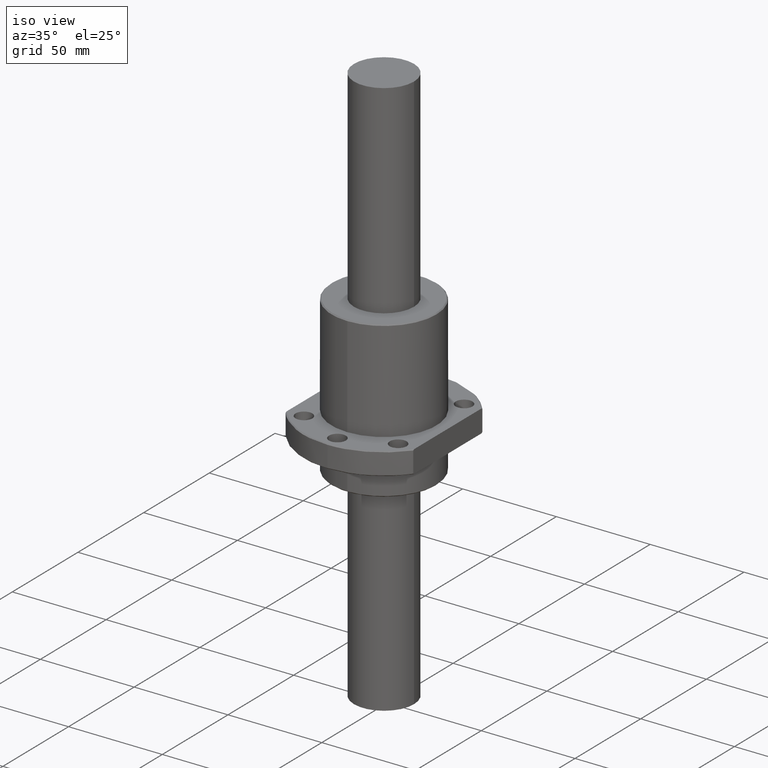
[diagram: clean part render]
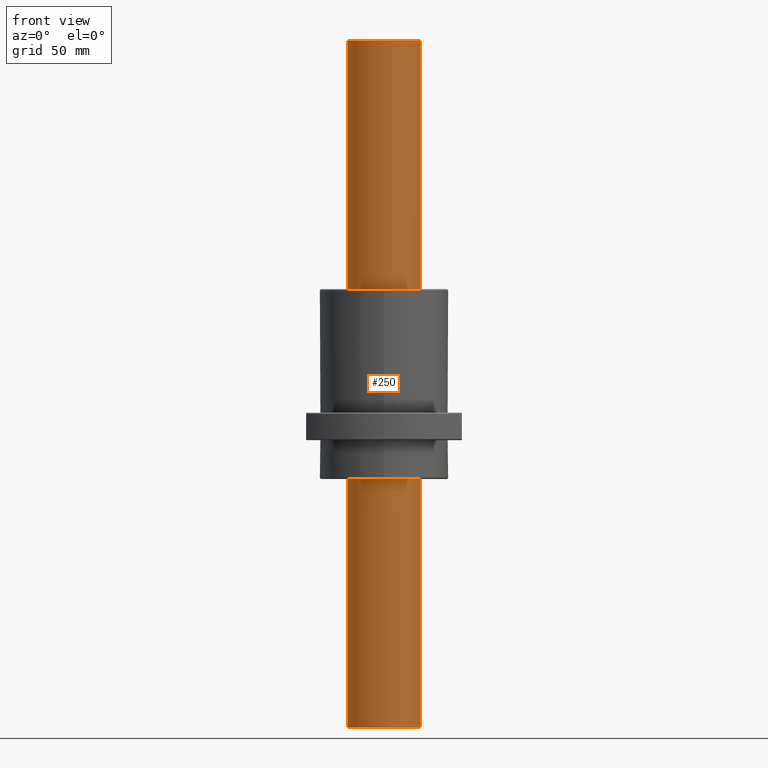
[diagram: tour spotlight — one face highlighted and labeled with its STEP entity id]
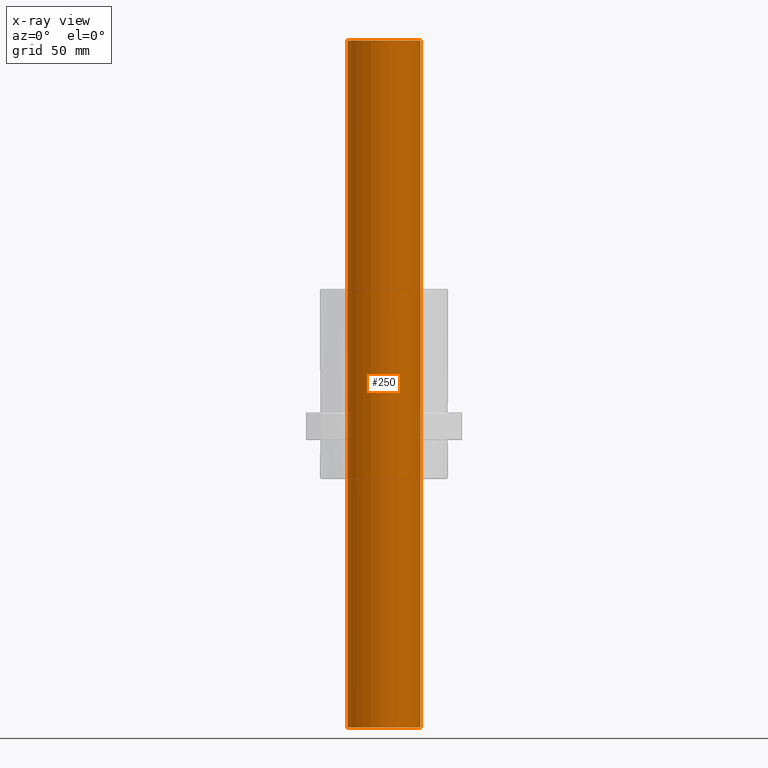
[diagram: x-ray of the same camera — body ghosted, this tour face saturated]
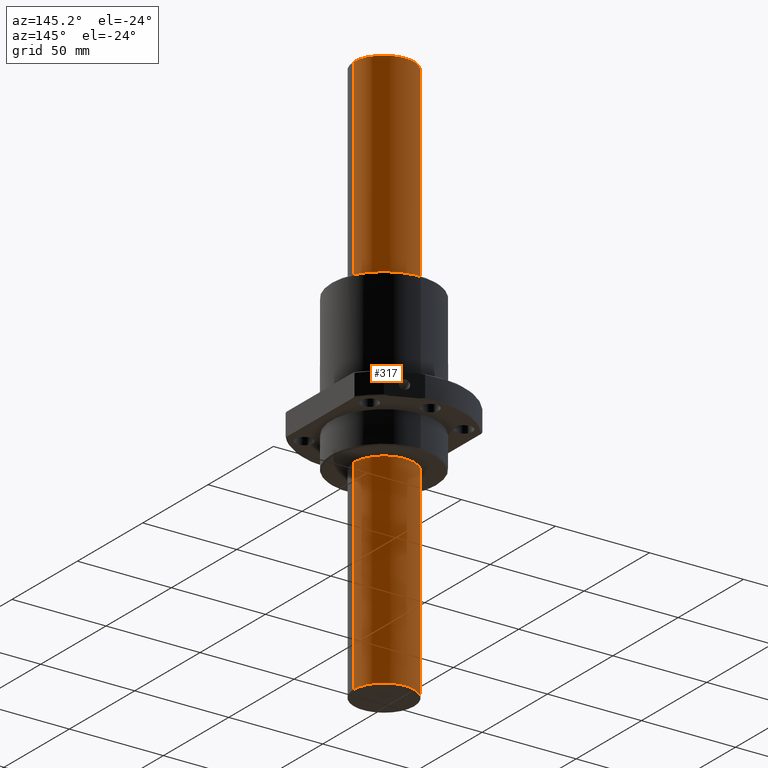
[diagram: tour spotlight — one face highlighted and labeled with its STEP entity id]
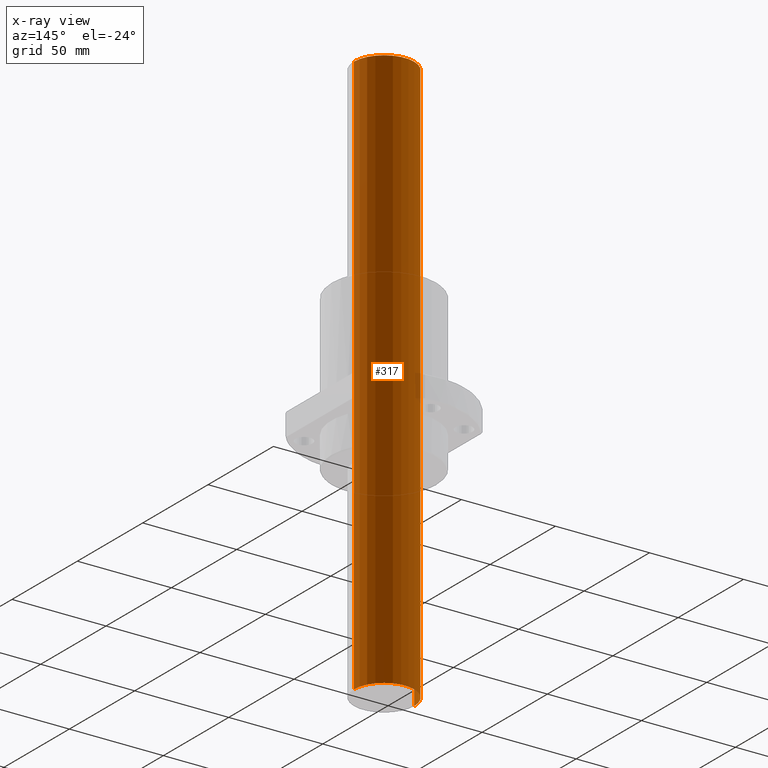
[diagram: x-ray of the same camera — body ghosted, this tour face saturated]
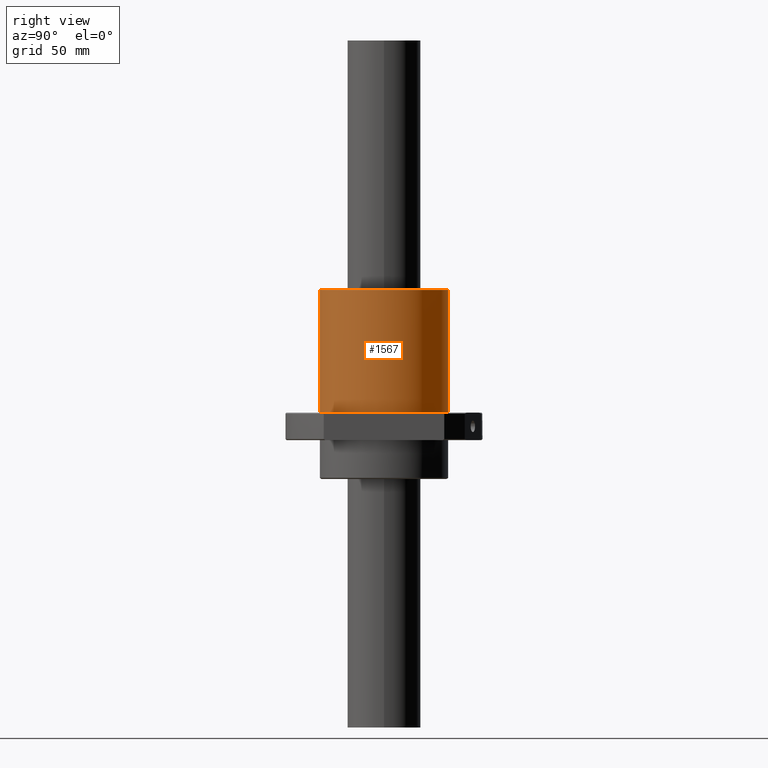
[diagram: tour spotlight — one face highlighted and labeled with its STEP entity id]
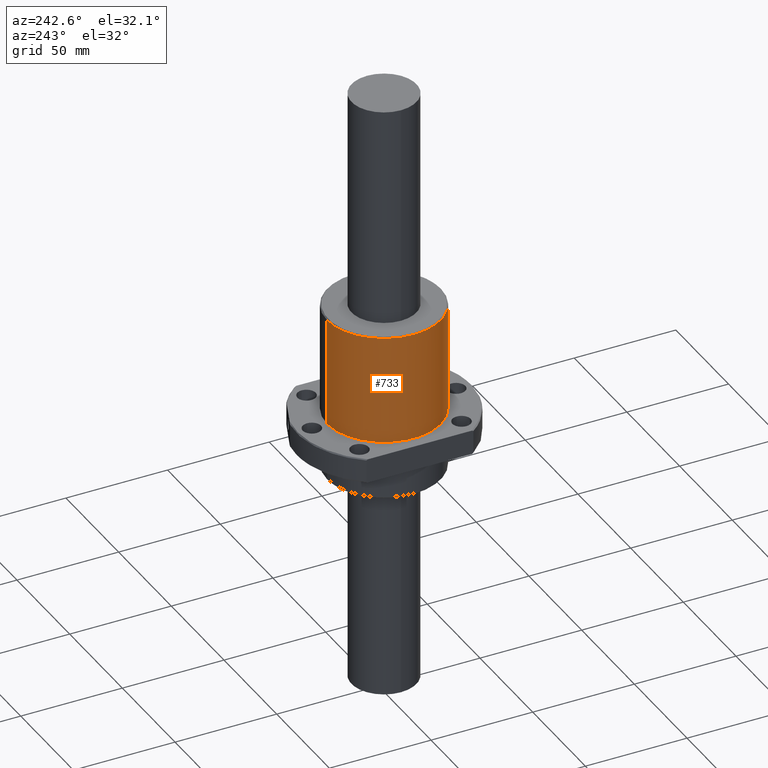
[diagram: tour spotlight — one face highlighted and labeled with its STEP entity id]
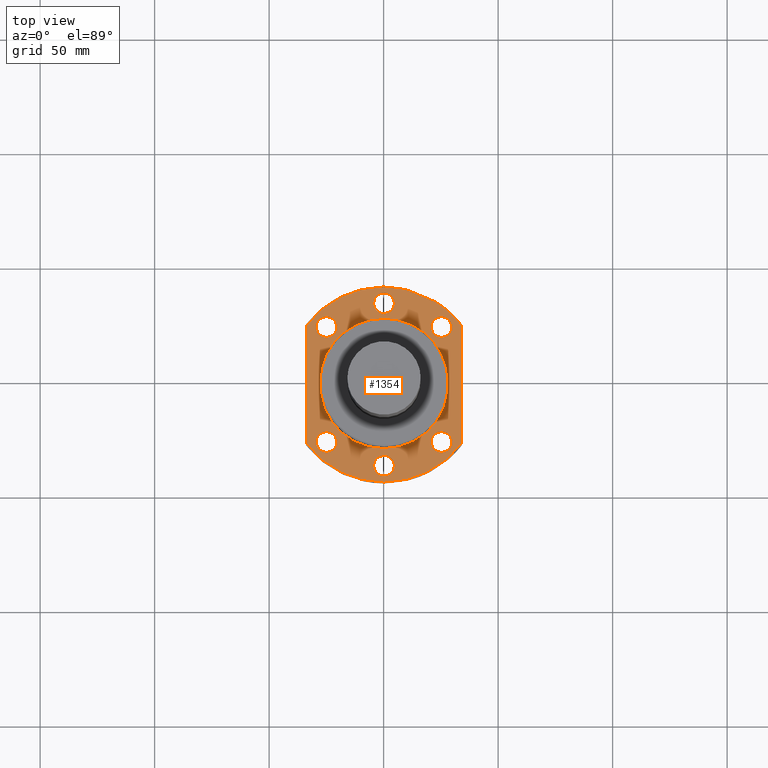
[diagram: tour spotlight — one face highlighted and labeled with its STEP entity id]
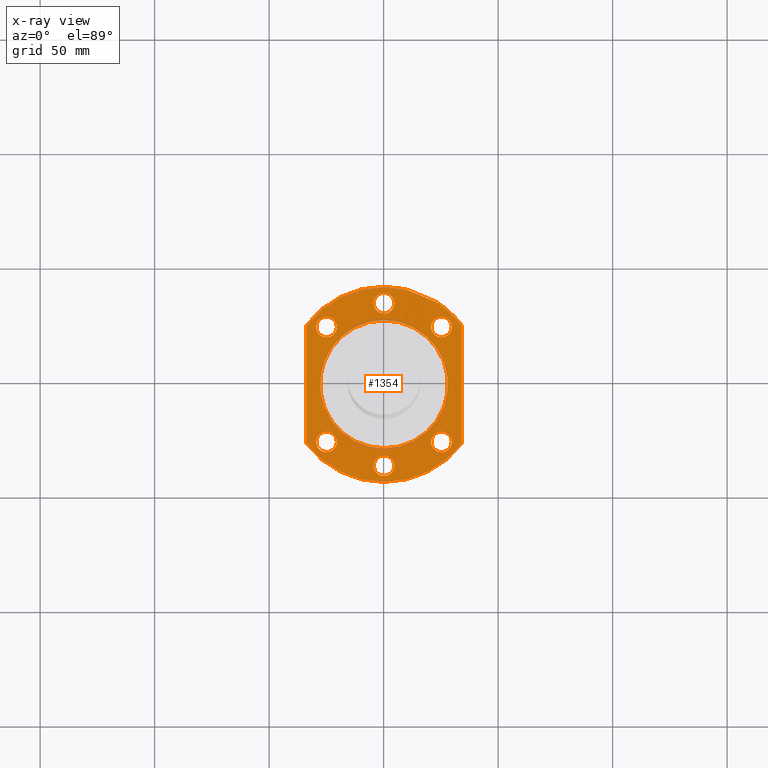
[diagram: x-ray of the same camera — body ghosted, this tour face saturated]
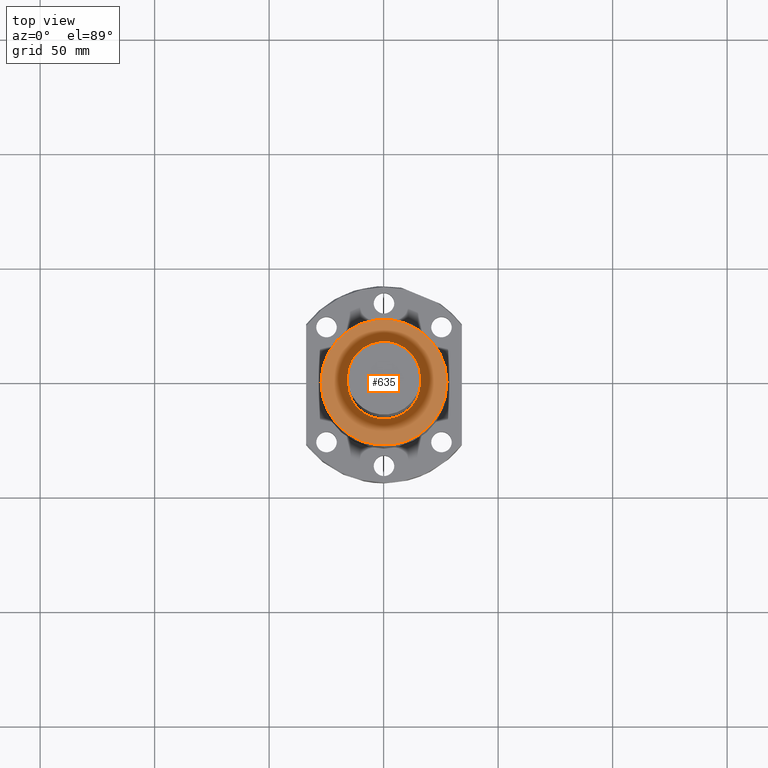
[diagram: tour spotlight — one face highlighted and labeled with its STEP entity id]
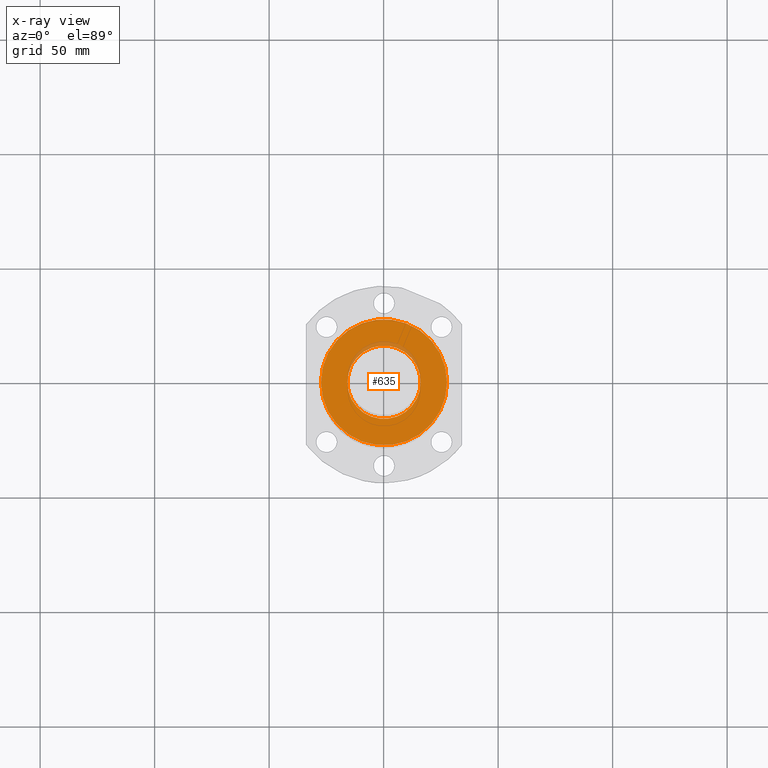
[diagram: x-ray of the same camera — body ghosted, this tour face saturated]
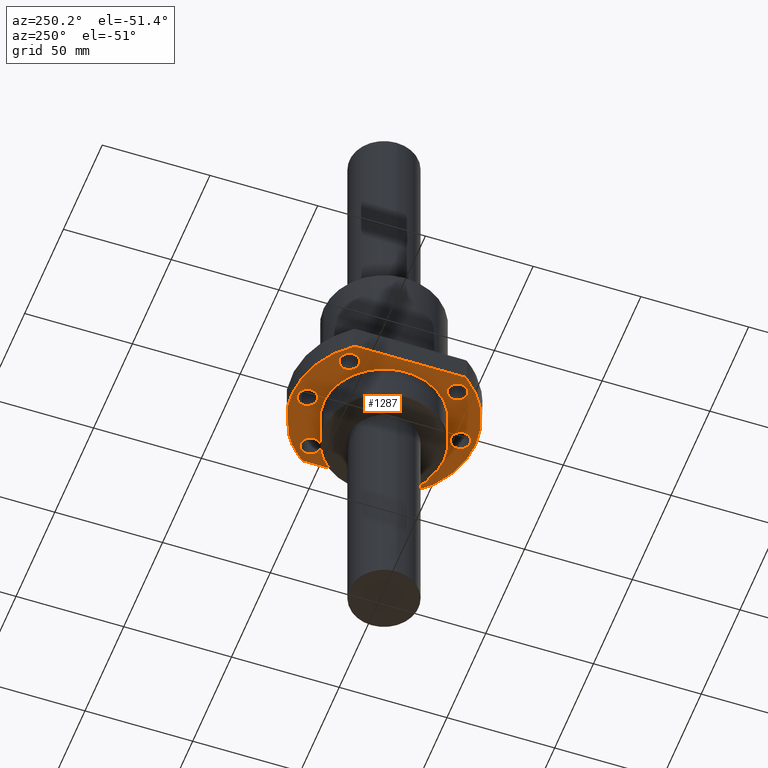
[diagram: tour spotlight — one face highlighted and labeled with its STEP entity id]
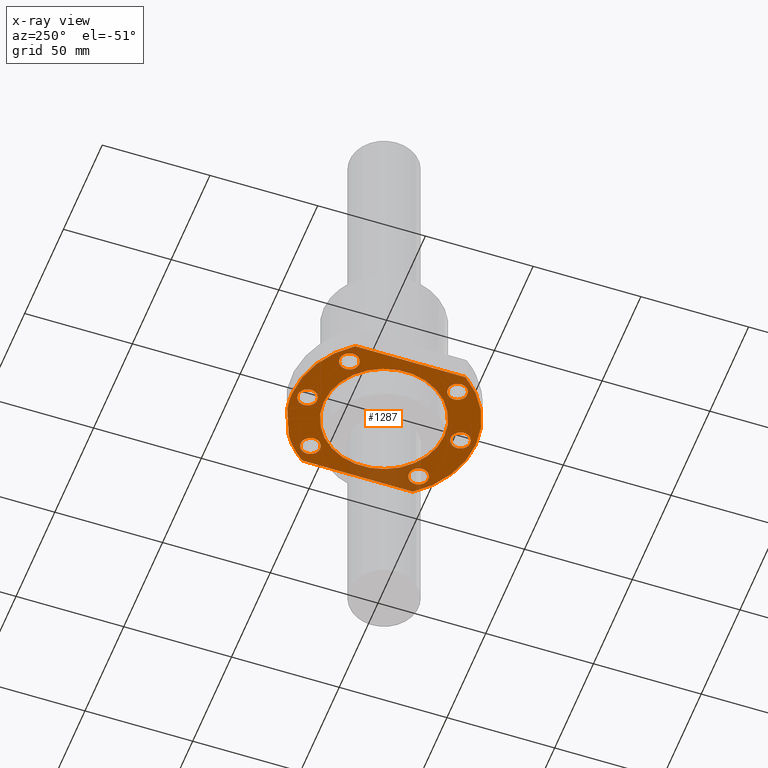
[diagram: x-ray of the same camera — body ghosted, this tour face saturated]
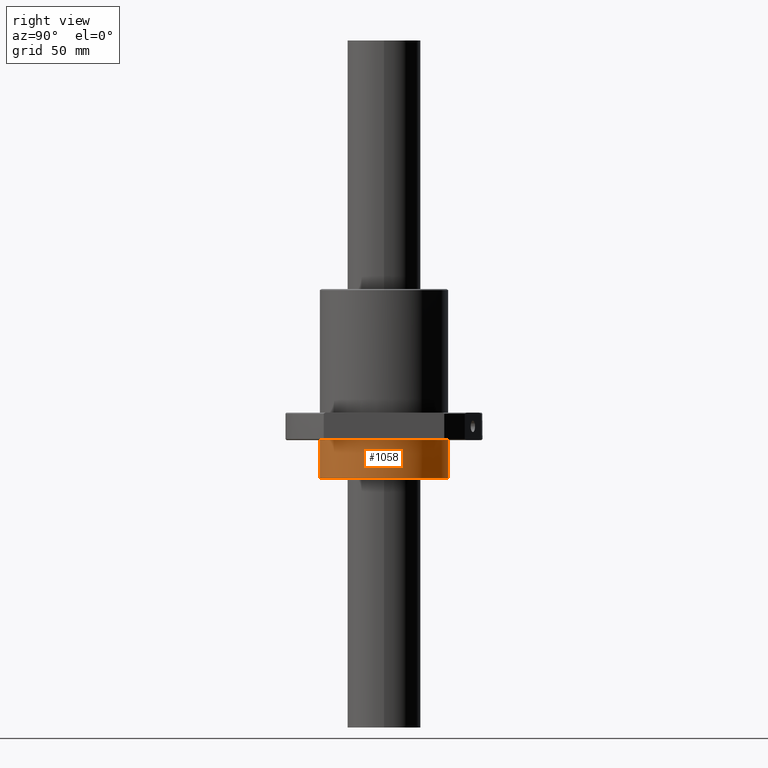
[diagram: tour spotlight — one face highlighted and labeled with its STEP entity id]
A machine part: a face-by-face anatomy tour. The part has 50 B-rep faces; the first image is the clean iso view, then the 8 largest visible faces are spotlighted one at a time (largest first), each with its STEP entity span.

Face 1 — front view, entity #250. An x-ray twin of the same camera follows (body ghosted, this face saturated) — the face is partly hidden behind the body. In plain terms, the highlighted cylindrical surface (partial cylindrical patch) has radius 16 mm, axis along (0, 0, 1).
Definition (entity closure, byte-faithful):
#66 = AXIS2_PLACEMENT_3D ( 'NONE', #1200, #1177, #1168 ) ;
#91 = CIRCLE ( 'NONE', #66, 16.00000000000000000 ) ;
#149 = DIRECTION ( 'NONE',  ( 0.0000000000000000000, -0.0000000000000000000, 1.000000000000000000 ) ) ;
#151 = CIRCLE ( 'NONE', #1253, 16.00000000000000000 ) ;
#152 = CARTESIAN_POINT ( 'NONE',  ( 16.00000000000000000, 0.0000000000000000000, -300.0000000000000000 ) ) ;
#156 = VERTEX_POINT ( 'NONE', #1319 ) ;
#162 = LINE ( 'NONE', #152, #1641 ) ;
#237 = DIRECTION ( 'NONE',  ( 1.000000000000000000, 0.0000000000000000000, 0.0000000000000000000 ) ) ;
#249 = DIRECTION ( 'NONE',  ( -0.0000000000000000000, 0.0000000000000000000, -1.000000000000000000 ) ) ;
#250 = ADVANCED_FACE ( 'NONE', ( #726 ), #1377, .T. ) ;
#296 = CARTESIAN_POINT ( 'NONE',  ( 0.0000000000000000000, 0.0000000000000000000, -300.0000000000000000 ) ) ;
#305 = EDGE_CURVE ( 'NONE', #1320, #684, #91, .T. ) ;
#485 = VERTEX_POINT ( 'NONE', #858 ) ;
#522 = EDGE_LOOP ( 'NONE', ( #620, #677, #685, #648 ) ) ;
#620 = ORIENTED_EDGE ( 'NONE', *, *, #1724, .F. ) ;
#648 = ORIENTED_EDGE ( 'NONE', *, *, #305, .F. ) ;
#677 = ORIENTED_EDGE ( 'NONE', *, *, #2042, .F. ) ;
#684 = VERTEX_POINT ( 'NONE', #686 ) ;
#685 = ORIENTED_EDGE ( 'NONE', *, *, #950, .T. ) ;
#686 = CARTESIAN_POINT ( 'NONE',  ( 16.00000000000000000, 0.0000000000000000000, 0.0000000000000000000 ) ) ;
#726 = FACE_OUTER_BOUND ( 'NONE', #522, .T. ) ;
#858 = CARTESIAN_POINT ( 'NONE',  ( 16.00000000000000000, 0.0000000000000000000, -300.0000000000000000 ) ) ;
#950 = EDGE_CURVE ( 'NONE', #485, #684, #162, .T. ) ;
#1168 = DIRECTION ( 'NONE',  ( 1.000000000000000000, 0.0000000000000000000, 0.0000000000000000000 ) ) ;
#1177 = DIRECTION ( 'NONE',  ( 0.0000000000000000000, -0.0000000000000000000, 1.000000000000000000 ) ) ;
#1200 = CARTESIAN_POINT ( 'NONE',  ( 0.0000000000000000000, 0.0000000000000000000, 0.0000000000000000000 ) ) ;
#1214 = AXIS2_PLACEMENT_3D ( 'NONE', #1245, #1243, #1242 ) ;
#1242 = DIRECTION ( 'NONE',  ( 1.000000000000000000, 0.0000000000000000000, 0.0000000000000000000 ) ) ;
#1243 = DIRECTION ( 'NONE',  ( 0.0000000000000000000, -0.0000000000000000000, 1.000000000000000000 ) ) ;
#1245 = CARTESIAN_POINT ( 'NONE',  ( 0.0000000000000000000, 0.0000000000000000000, -300.0000000000000000 ) ) ;
#1253 = AXIS2_PLACEMENT_3D ( 'NONE', #296, #249, #237 ) ;
#1319 = CARTESIAN_POINT ( 'NONE',  ( -16.00000000000000000, 1.959434878635765100E-015, -300.0000000000000000 ) ) ;
#1320 = VERTEX_POINT ( 'NONE', #2045 ) ;
#1377 = CYLINDRICAL_SURFACE ( 'NONE', #1214, 16.00000000000000000 ) ;
#1476 = VECTOR ( 'NONE', #1600, 1000.000000000000000 ) ;
#1600 = DIRECTION ( 'NONE',  ( 0.0000000000000000000, -0.0000000000000000000, 1.000000000000000000 ) ) ;
#1621 = CARTESIAN_POINT ( 'NONE',  ( -16.00000000000000000, 1.959434878635765100E-015, -300.0000000000000000 ) ) ;
#1632 = LINE ( 'NONE', #1621, #1476 ) ;
#1641 = VECTOR ( 'NONE', #149, 1000.000000000000000 ) ;
#1724 = EDGE_CURVE ( 'NONE', #156, #1320, #1632, .T. ) ;
#2042 = EDGE_CURVE ( 'NONE', #485, #156, #151, .T. ) ;
#2045 = CARTESIAN_POINT ( 'NONE',  ( -16.00000000000000000, 1.959434878635765100E-015, 0.0000000000000000000 ) ) ;

Face 2 — auxiliary view, entity #317. An x-ray twin of the same camera follows (body ghosted, this face saturated) — the face is partly hidden behind the body. In plain terms, the highlighted cylindrical surface (partial cylindrical patch) has radius 16 mm, axis along (0, 0, 1).
Definition (entity closure, byte-faithful):
#149 = DIRECTION ( 'NONE',  ( 0.0000000000000000000, -0.0000000000000000000, 1.000000000000000000 ) ) ;
#152 = CARTESIAN_POINT ( 'NONE',  ( 16.00000000000000000, 0.0000000000000000000, -300.0000000000000000 ) ) ;
#156 = VERTEX_POINT ( 'NONE', #1319 ) ;
#162 = LINE ( 'NONE', #152, #1641 ) ;
#257 = ORIENTED_EDGE ( 'NONE', *, *, #2037, .F. ) ;
#264 = ORIENTED_EDGE ( 'NONE', *, *, #1419, .F. ) ;
#276 = ORIENTED_EDGE ( 'NONE', *, *, #1724, .T. ) ;
#311 = DIRECTION ( 'NONE',  ( 1.000000000000000000, 0.0000000000000000000, 0.0000000000000000000 ) ) ;
#317 = ADVANCED_FACE ( 'NONE', ( #406 ), #1976, .T. ) ;
#321 = ORIENTED_EDGE ( 'NONE', *, *, #950, .F. ) ;
#331 = DIRECTION ( 'NONE',  ( -0.0000000000000000000, 0.0000000000000000000, -1.000000000000000000 ) ) ;
#345 = CARTESIAN_POINT ( 'NONE',  ( 0.0000000000000000000, 0.0000000000000000000, -300.0000000000000000 ) ) ;
#359 = EDGE_LOOP ( 'NONE', ( #257, #276, #264, #321 ) ) ;
#406 = FACE_OUTER_BOUND ( 'NONE', #359, .T. ) ;
#431 = DIRECTION ( 'NONE',  ( 0.0000000000000000000, -0.0000000000000000000, 1.000000000000000000 ) ) ;
#485 = VERTEX_POINT ( 'NONE', #858 ) ;
#486 = CIRCLE ( 'NONE', #1310, 16.00000000000000000 ) ;
#565 = AXIS2_PLACEMENT_3D ( 'NONE', #1155, #1154, #1153 ) ;
#684 = VERTEX_POINT ( 'NONE', #686 ) ;
#686 = CARTESIAN_POINT ( 'NONE',  ( 16.00000000000000000, 0.0000000000000000000, 0.0000000000000000000 ) ) ;
#741 = AXIS2_PLACEMENT_3D ( 'NONE', #1171, #431, #1042 ) ;
#858 = CARTESIAN_POINT ( 'NONE',  ( 16.00000000000000000, 0.0000000000000000000, -300.0000000000000000 ) ) ;
#950 = EDGE_CURVE ( 'NONE', #485, #684, #162, .T. ) ;
#1042 = DIRECTION ( 'NONE',  ( 1.000000000000000000, 0.0000000000000000000, 0.0000000000000000000 ) ) ;
#1153 = DIRECTION ( 'NONE',  ( 1.000000000000000000, 0.0000000000000000000, 0.0000000000000000000 ) ) ;
#1154 = DIRECTION ( 'NONE',  ( 0.0000000000000000000, -0.0000000000000000000, 1.000000000000000000 ) ) ;
#1155 = CARTESIAN_POINT ( 'NONE',  ( 0.0000000000000000000, 0.0000000000000000000, -300.0000000000000000 ) ) ;
#1171 = CARTESIAN_POINT ( 'NONE',  ( 0.0000000000000000000, 0.0000000000000000000, 0.0000000000000000000 ) ) ;
#1310 = AXIS2_PLACEMENT_3D ( 'NONE', #345, #331, #311 ) ;
#1319 = CARTESIAN_POINT ( 'NONE',  ( -16.00000000000000000, 1.959434878635765100E-015, -300.0000000000000000 ) ) ;
#1320 = VERTEX_POINT ( 'NONE', #2045 ) ;
#1419 = EDGE_CURVE ( 'NONE', #684, #1320, #1555, .T. ) ;
#1476 = VECTOR ( 'NONE', #1600, 1000.000000000000000 ) ;
#1555 = CIRCLE ( 'NONE', #741, 16.00000000000000000 ) ;
#1600 = DIRECTION ( 'NONE',  ( 0.0000000000000000000, -0.0000000000000000000, 1.000000000000000000 ) ) ;
#1621 = CARTESIAN_POINT ( 'NONE',  ( -16.00000000000000000, 1.959434878635765100E-015, -300.0000000000000000 ) ) ;
#1632 = LINE ( 'NONE', #1621, #1476 ) ;
#1641 = VECTOR ( 'NONE', #149, 1000.000000000000000 ) ;
#1724 = EDGE_CURVE ( 'NONE', #156, #1320, #1632, .T. ) ;
#1976 = CYLINDRICAL_SURFACE ( 'NONE', #565, 16.00000000000000000 ) ;
#2037 = EDGE_CURVE ( 'NONE', #156, #485, #486, .T. ) ;
#2045 = CARTESIAN_POINT ( 'NONE',  ( -16.00000000000000000, 1.959434878635765100E-015, 0.0000000000000000000 ) ) ;

Face 3 — right view, entity #1567. In plain terms, the highlighted cylindrical surface (partial cylindrical patch) has radius 28 mm, axis along (0, -0, -1).
Definition (entity closure, byte-faithful):
#34 = CYLINDRICAL_SURFACE ( 'NONE', #138, 27.99999610000000100 ) ;
#58 = CARTESIAN_POINT ( 'NONE',  ( 0.0000000000000000000, -27.99999610000001500, -28.99999400000000800 ) ) ;
#138 = AXIS2_PLACEMENT_3D ( 'NONE', #482, #865, #851 ) ;
#287 = CIRCLE ( 'NONE', #330, 27.99999610000000100 ) ;
#330 = AXIS2_PLACEMENT_3D ( 'NONE', #952, #940, #914 ) ;
#383 = FACE_OUTER_BOUND ( 'NONE', #1820, .T. ) ;
#388 = CARTESIAN_POINT ( 'NONE',  ( 0.0000000000000000000, -27.99999610000000100, -82.50000030000001100 ) ) ;
#440 = EDGE_CURVE ( 'NONE', #1731, #1769, #1067, .T. ) ;
#482 = CARTESIAN_POINT ( 'NONE',  ( 0.0000000000000000000, 0.0000000000000000000, -82.50000029999999600 ) ) ;
#586 = VERTEX_POINT ( 'NONE', #789 ) ;
#613 = DIRECTION ( 'NONE',  ( 1.000000000000000000, 0.0000000000000000000, 0.0000000000000000000 ) ) ;
#625 = DIRECTION ( 'NONE',  ( -0.0000000000000000000, -0.0000000000000000000, -1.000000000000000000 ) ) ;
#689 = CARTESIAN_POINT ( 'NONE',  ( 0.0000000000000000000, 0.0000000000000000000, -82.50000029999999600 ) ) ;
#785 = VECTOR ( 'NONE', #1915, 1000.000000000000000 ) ;
#789 = CARTESIAN_POINT ( 'NONE',  ( 3.429010560000337200E-015, 27.99999609999998600, -28.99999399999999400 ) ) ;
#844 = VECTOR ( 'NONE', #1862, 1000.000000000000000 ) ;
#851 = DIRECTION ( 'NONE',  ( 0.0000000000000000000, -1.000000000000000000, -4.956353478854397600E-016 ) ) ;
#865 = DIRECTION ( 'NONE',  ( 0.0000000000000000000, -2.478176739427199300E-016, 1.000000000000000000 ) ) ;
#914 = DIRECTION ( 'NONE',  ( 0.0000000000000000000, -1.000000000000000000, -2.478176739427198800E-016 ) ) ;
#940 = DIRECTION ( 'NONE',  ( -0.0000000000000000000, 2.478176739427199300E-016, -1.000000000000000000 ) ) ;
#952 = CARTESIAN_POINT ( 'NONE',  ( 0.0000000000000000000, -1.325824711718686200E-014, -28.99999400000000100 ) ) ;
#972 = CARTESIAN_POINT ( 'NONE',  ( -27.99999610000000100, 3.429010560000337200E-015, -82.50000029999999600 ) ) ;
#1033 = DIRECTION ( 'NONE',  ( 1.000000000000000000, 0.0000000000000000000, 0.0000000000000000000 ) ) ;
#1035 = DIRECTION ( 'NONE',  ( -0.0000000000000000000, -0.0000000000000000000, -1.000000000000000000 ) ) ;
#1037 = CARTESIAN_POINT ( 'NONE',  ( 0.0000000000000000000, 0.0000000000000000000, -82.50000029999999600 ) ) ;
#1056 = VERTEX_POINT ( 'NONE', #58 ) ;
#1067 = CIRCLE ( 'NONE', #1309, 27.99999610000000100 ) ;
#1108 = EDGE_CURVE ( 'NONE', #1882, #586, #1428, .T. ) ;
#1142 = CARTESIAN_POINT ( 'NONE',  ( 3.429010560000338000E-015, 27.99999610000000100, -82.50000029999999600 ) ) ;
#1255 = CIRCLE ( 'NONE', #1723, 27.99999610000000100 ) ;
#1309 = AXIS2_PLACEMENT_3D ( 'NONE', #1037, #1035, #1033 ) ;
#1390 = EDGE_CURVE ( 'NONE', #1731, #1056, #1898, .T. ) ;
#1428 = LINE ( 'NONE', #2020, #844 ) ;
#1559 = CARTESIAN_POINT ( 'NONE',  ( 0.0000000000000000000, -27.99999610000000100, -82.50000029999999600 ) ) ;
#1567 = ADVANCED_FACE ( 'NONE', ( #383 ), #34, .T. ) ;
#1723 = AXIS2_PLACEMENT_3D ( 'NONE', #689, #625, #613 ) ;
#1731 = VERTEX_POINT ( 'NONE', #1559 ) ;
#1769 = VERTEX_POINT ( 'NONE', #972 ) ;
#1820 = EDGE_LOOP ( 'NONE', ( #1927, #1913, #1886, #1847, #1887 ) ) ;
#1847 = ORIENTED_EDGE ( 'NONE', *, *, #1390, .T. ) ;
#1862 = DIRECTION ( 'NONE',  ( 0.0000000000000000000, -2.478176739427199300E-016, 1.000000000000000000 ) ) ;
#1882 = VERTEX_POINT ( 'NONE', #1142 ) ;
#1886 = ORIENTED_EDGE ( 'NONE', *, *, #440, .F. ) ;
#1887 = ORIENTED_EDGE ( 'NONE', *, *, #1901, .T. ) ;
#1898 = LINE ( 'NONE', #388, #785 ) ;
#1901 = EDGE_CURVE ( 'NONE', #1056, #586, #287, .T. ) ;
#1913 = ORIENTED_EDGE ( 'NONE', *, *, #1983, .F. ) ;
#1915 = DIRECTION ( 'NONE',  ( 0.0000000000000000000, -2.478176739427199300E-016, 1.000000000000000000 ) ) ;
#1927 = ORIENTED_EDGE ( 'NONE', *, *, #1108, .F. ) ;
#1983 = EDGE_CURVE ( 'NONE', #1769, #1882, #1255, .T. ) ;
#2020 = CARTESIAN_POINT ( 'NONE',  ( 3.429010560000337200E-015, 27.99999610000000100, -82.50000029999998200 ) ) ;

Face 4 — auxiliary view, entity #733. In plain terms, the highlighted cylindrical surface (partial cylindrical patch) has radius 28 mm, axis along (0, -0, -1).
Definition (entity closure, byte-faithful):
#46 = DIRECTION ( 'NONE',  ( 1.000000000000000000, 0.0000000000000000000, 0.0000000000000000000 ) ) ;
#48 = DIRECTION ( 'NONE',  ( -0.0000000000000000000, -0.0000000000000000000, -1.000000000000000000 ) ) ;
#49 = CARTESIAN_POINT ( 'NONE',  ( 0.0000000000000000000, 0.0000000000000000000, -82.50000029999999600 ) ) ;
#58 = CARTESIAN_POINT ( 'NONE',  ( 0.0000000000000000000, -27.99999610000001500, -28.99999400000000800 ) ) ;
#81 = DIRECTION ( 'NONE',  ( 0.0000000000000000000, -1.000000000000000000, -2.478176739427198800E-016 ) ) ;
#83 = DIRECTION ( 'NONE',  ( -0.0000000000000000000, 2.478176739427199300E-016, -1.000000000000000000 ) ) ;
#92 = CARTESIAN_POINT ( 'NONE',  ( 0.0000000000000000000, -1.325824711718686200E-014, -28.99999400000000100 ) ) ;
#104 = CIRCLE ( 'NONE', #1224, 27.99999610000000100 ) ;
#169 = AXIS2_PLACEMENT_3D ( 'NONE', #776, #775, #768 ) ;
#388 = CARTESIAN_POINT ( 'NONE',  ( 0.0000000000000000000, -27.99999610000000100, -82.50000030000001100 ) ) ;
#586 = VERTEX_POINT ( 'NONE', #789 ) ;
#587 = CIRCLE ( 'NONE', #169, 27.99999610000000100 ) ;
#619 = EDGE_CURVE ( 'NONE', #1882, #695, #587, .T. ) ;
#637 = DIRECTION ( 'NONE',  ( 0.0000000000000000000, -1.000000000000000000, -4.956353478854397600E-016 ) ) ;
#638 = DIRECTION ( 'NONE',  ( 0.0000000000000000000, -2.478176739427199300E-016, 1.000000000000000000 ) ) ;
#650 = CARTESIAN_POINT ( 'NONE',  ( 0.0000000000000000000, 0.0000000000000000000, -82.50000029999999600 ) ) ;
#681 = CARTESIAN_POINT ( 'NONE',  ( 27.99999610000000100, 0.0000000000000000000, -82.50000029999999600 ) ) ;
#695 = VERTEX_POINT ( 'NONE', #681 ) ;
#733 = ADVANCED_FACE ( 'NONE', ( #1346 ), #1708, .T. ) ;
#768 = DIRECTION ( 'NONE',  ( 1.000000000000000000, 0.0000000000000000000, 0.0000000000000000000 ) ) ;
#775 = DIRECTION ( 'NONE',  ( -0.0000000000000000000, -0.0000000000000000000, -1.000000000000000000 ) ) ;
#776 = CARTESIAN_POINT ( 'NONE',  ( 0.0000000000000000000, 0.0000000000000000000, -82.50000029999999600 ) ) ;
#785 = VECTOR ( 'NONE', #1915, 1000.000000000000000 ) ;
#789 = CARTESIAN_POINT ( 'NONE',  ( 3.429010560000337200E-015, 27.99999609999998600, -28.99999399999999400 ) ) ;
#844 = VECTOR ( 'NONE', #1862, 1000.000000000000000 ) ;
#869 = ORIENTED_EDGE ( 'NONE', *, *, #619, .F. ) ;
#1020 = EDGE_CURVE ( 'NONE', #586, #1056, #1857, .T. ) ;
#1056 = VERTEX_POINT ( 'NONE', #58 ) ;
#1061 = EDGE_CURVE ( 'NONE', #695, #1731, #104, .T. ) ;
#1108 = EDGE_CURVE ( 'NONE', #1882, #586, #1428, .T. ) ;
#1142 = CARTESIAN_POINT ( 'NONE',  ( 3.429010560000338000E-015, 27.99999610000000100, -82.50000029999999600 ) ) ;
#1224 = AXIS2_PLACEMENT_3D ( 'NONE', #49, #48, #46 ) ;
#1346 = FACE_OUTER_BOUND ( 'NONE', #1955, .T. ) ;
#1390 = EDGE_CURVE ( 'NONE', #1731, #1056, #1898, .T. ) ;
#1428 = LINE ( 'NONE', #2020, #844 ) ;
#1446 = AXIS2_PLACEMENT_3D ( 'NONE', #92, #83, #81 ) ;
#1552 = AXIS2_PLACEMENT_3D ( 'NONE', #650, #638, #637 ) ;
#1559 = CARTESIAN_POINT ( 'NONE',  ( 0.0000000000000000000, -27.99999610000000100, -82.50000029999999600 ) ) ;
#1584 = ORIENTED_EDGE ( 'NONE', *, *, #1061, .F. ) ;
#1630 = ORIENTED_EDGE ( 'NONE', *, *, #1390, .F. ) ;
#1639 = ORIENTED_EDGE ( 'NONE', *, *, #1020, .T. ) ;
#1652 = ORIENTED_EDGE ( 'NONE', *, *, #1108, .T. ) ;
#1708 = CYLINDRICAL_SURFACE ( 'NONE', #1552, 27.99999610000000100 ) ;
#1731 = VERTEX_POINT ( 'NONE', #1559 ) ;
#1857 = CIRCLE ( 'NONE', #1446, 27.99999610000000100 ) ;
#1862 = DIRECTION ( 'NONE',  ( 0.0000000000000000000, -2.478176739427199300E-016, 1.000000000000000000 ) ) ;
#1882 = VERTEX_POINT ( 'NONE', #1142 ) ;
#1898 = LINE ( 'NONE', #388, #785 ) ;
#1915 = DIRECTION ( 'NONE',  ( 0.0000000000000000000, -2.478176739427199300E-016, 1.000000000000000000 ) ) ;
#1955 = EDGE_LOOP ( 'NONE', ( #869, #1652, #1639, #1630, #1584 ) ) ;
#2020 = CARTESIAN_POINT ( 'NONE',  ( 3.429010560000337200E-015, 27.99999610000000100, -82.50000029999998200 ) ) ;

Face 5 — top view, entity #1354. An x-ray twin of the same camera follows (body ghosted, this face saturated) — the face is partly hidden behind the body. In plain terms, the highlighted planar face has unit normal (0, 0, -1).
Definition (entity closure, byte-faithful):
#10 = CARTESIAN_POINT ( 'NONE',  ( -0.0001369999999998802700, 35.49833700000000600, -28.99999400000000100 ) ) ;
#42 = DIRECTION ( 'NONE',  ( 0.0000000000000000000, 0.0000000000000000000, 1.000000000000000000 ) ) ;
#50 = CARTESIAN_POINT ( 'NONE',  ( 0.0000000000000000000, 0.0000000000000000000, -28.99999400000000800 ) ) ;
#58 = CARTESIAN_POINT ( 'NONE',  ( 0.0000000000000000000, -27.99999610000001500, -28.99999400000000800 ) ) ;
#69 = DIRECTION ( 'NONE',  ( 1.000000000000000000, -5.329070518200751400E-015, 0.0000000000000000000 ) ) ;
#71 = DIRECTION ( 'NONE',  ( -0.0000000000000000000, 0.0000000000000000000, -1.000000000000000000 ) ) ;
#76 = EDGE_LOOP ( 'NONE', ( #1893, #1894 ) ) ;
#79 = CARTESIAN_POINT ( 'NONE',  ( 0.0000000000000000000, 0.0000000000000000000, -28.99999400000000100 ) ) ;
#81 = DIRECTION ( 'NONE',  ( 0.0000000000000000000, -1.000000000000000000, -2.478176739427198800E-016 ) ) ;
#82 = CARTESIAN_POINT ( 'NONE',  ( -20.60230999999999900, 25.10063199999999700, -28.99999400000000100 ) ) ;
#83 = DIRECTION ( 'NONE',  ( -0.0000000000000000000, 2.478176739427199300E-016, -1.000000000000000000 ) ) ;
#87 = DIRECTION ( 'NONE',  ( 1.000000000000000000, 0.0000000000000000000, 0.0000000000000000000 ) ) ;
#90 = VERTEX_POINT ( 'NONE', #1484 ) ;
#92 = CARTESIAN_POINT ( 'NONE',  ( 0.0000000000000000000, -1.325824711718686200E-014, -28.99999400000000100 ) ) ;
#97 = CARTESIAN_POINT ( 'NONE',  ( -29.60230999999999900, 25.10063199999999700, -28.99999400000000100 ) ) ;
#98 = CIRCLE ( 'NONE', #1460, 4.500000000000000900 ) ;
#99 = CARTESIAN_POINT ( 'NONE',  ( -29.60230999999999900, -25.10063199999999700, -28.99999400000000100 ) ) ;
#103 = EDGE_CURVE ( 'NONE', #617, #129, #254, .T. ) ;
#129 = VERTEX_POINT ( 'NONE', #1462 ) ;
#163 = DIRECTION ( 'NONE',  ( -0.0000000000000000000, -1.000000000000000000, -0.0000000000000000000 ) ) ;
#165 = CARTESIAN_POINT ( 'NONE',  ( -34.00038099999999700, 0.0000000000000000000, -28.99999400000000100 ) ) ;
#168 = LINE ( 'NONE', #165, #1797 ) ;
#194 = AXIS2_PLACEMENT_3D ( 'NONE', #533, #1497, #87 ) ;
#198 = CARTESIAN_POINT ( 'NONE',  ( -34.00038099999999700, -25.63733583927635000, -28.99999399846142400 ) ) ;
#227 = EDGE_CURVE ( 'NONE', #1288, #742, #430, .T. ) ;
#245 = AXIS2_PLACEMENT_3D ( 'NONE', #792, #1792, #1270 ) ;
#254 = CIRCLE ( 'NONE', #542, 4.500000000000000900 ) ;
#268 = DIRECTION ( 'NONE',  ( 0.0000000000000000000, -0.0000000000000000000, 1.000000000000000000 ) ) ;
#274 = EDGE_CURVE ( 'NONE', #641, #1701, #1541, .T. ) ;
#280 = CIRCLE ( 'NONE', #1657, 4.500000000000000900 ) ;
#287 = CIRCLE ( 'NONE', #330, 27.99999610000000100 ) ;
#300 = DIRECTION ( 'NONE',  ( -0.0000000000000000000, 0.0000000000000000000, -1.000000000000000000 ) ) ;
#330 = AXIS2_PLACEMENT_3D ( 'NONE', #952, #940, #914 ) ;
#380 = AXIS2_PLACEMENT_3D ( 'NONE', #437, #426, #425 ) ;
#382 = DIRECTION ( 'NONE',  ( 1.000000000000000000, 0.0000000000000000000, 0.0000000000000000000 ) ) ;
#404 = CARTESIAN_POINT ( 'NONE',  ( -34.00038099999999700, -43.09384161899999600, -28.99999400000000100 ) ) ;
#414 = CARTESIAN_POINT ( 'NONE',  ( 33.99961900000000300, 25.63834638189373600, -28.99999399538365500 ) ) ;
#425 = DIRECTION ( 'NONE',  ( 1.000000000000000000, 0.0000000000000000000, 0.0000000000000000000 ) ) ;
#426 = DIRECTION ( 'NONE',  ( -0.0000000000000000000, 0.0000000000000000000, -1.000000000000000000 ) ) ;
#430 = CIRCLE ( 'NONE', #1162, 42.58284744999998800 ) ;
#436 = CIRCLE ( 'NONE', #380, 4.500000000000000900 ) ;
#437 = CARTESIAN_POINT ( 'NONE',  ( -25.10230999999999900, 25.10063199999999700, -28.99999400000000100 ) ) ;
#446 = CIRCLE ( 'NONE', #245, 4.500000000000000900 ) ;
#465 = DIRECTION ( 'NONE',  ( 1.000000000000000000, 0.0000000000000000000, 0.0000000000000000000 ) ) ;
#477 = DIRECTION ( 'NONE',  ( -0.0000000000000000000, 0.0000000000000000000, -1.000000000000000000 ) ) ;
#497 = DIRECTION ( 'NONE',  ( 1.000000000000000000, 0.0000000000000000000, 0.0000000000000000000 ) ) ;
#508 = EDGE_LOOP ( 'NONE', ( #1866, #1870 ) ) ;
#509 = CARTESIAN_POINT ( 'NONE',  ( 4.499863000000001300, 35.49833700000000600, -28.99999400000000100 ) ) ;
#518 = CARTESIAN_POINT ( 'NONE',  ( -0.0001369999999998802700, 35.49833700000000600, -28.99999400000000100 ) ) ;
#533 = CARTESIAN_POINT ( 'NONE',  ( -25.10230999999999900, -25.10063199999999700, -28.99999400000000100 ) ) ;
#536 = VERTEX_POINT ( 'NONE', #861 ) ;
#542 = AXIS2_PLACEMENT_3D ( 'NONE', #1490, #1480, #1479 ) ;
#584 = CARTESIAN_POINT ( 'NONE',  ( -20.60230999999999900, -25.10063199999999700, -28.99999400000000100 ) ) ;
#586 = VERTEX_POINT ( 'NONE', #789 ) ;
#600 = DIRECTION ( 'NONE',  ( 0.0000000000000000000, 1.000000000000000000, 0.0000000000000000000 ) ) ;
#607 = CARTESIAN_POINT ( 'NONE',  ( 33.99961900000000300, 0.0000000000000000000, -28.99999400000000100 ) ) ;
#610 = LINE ( 'NONE', #607, #1074 ) ;
#612 = CARTESIAN_POINT ( 'NONE',  ( -9.575712613358597000, 41.49222366742961300, -28.99999400033264200 ) ) ;
#617 = VERTEX_POINT ( 'NONE', #777 ) ;
#634 = AXIS2_PLACEMENT_3D ( 'NONE', #807, #2006, #382 ) ;
#641 = VERTEX_POINT ( 'NONE', #697 ) ;
#651 = DIRECTION ( 'NONE',  ( 1.000000000000000000, 0.0000000000000000000, 0.0000000000000000000 ) ) ;
#653 = DIRECTION ( 'NONE',  ( -0.0000000000000000000, 0.0000000000000000000, -1.000000000000000000 ) ) ;
#655 = CARTESIAN_POINT ( 'NONE',  ( -25.10230999999999900, 25.10063199999999700, -28.99999400000000100 ) ) ;
#683 = DIRECTION ( 'NONE',  ( 1.000000000000000000, 0.0000000000000000000, 0.0000000000000000000 ) ) ;
#697 = CARTESIAN_POINT ( 'NONE',  ( -4.500137000000001400, -35.49833700000000600, -28.99999400000000100 ) ) ;
#701 = AXIS2_PLACEMENT_3D ( 'NONE', #50, #268, #1702 ) ;
#710 = EDGE_CURVE ( 'NONE', #2056, #986, #98, .T. ) ;
#742 = VERTEX_POINT ( 'NONE', #612 ) ;
#744 = EDGE_CURVE ( 'NONE', #1642, #1288, #610, .T. ) ;
#748 = VERTEX_POINT ( 'NONE', #584 ) ;
#766 = CIRCLE ( 'NONE', #194, 4.500000000000000900 ) ;
#777 = CARTESIAN_POINT ( 'NONE',  ( 20.60228000000000000, -25.10066200000000000, -28.99999400000000100 ) ) ;
#783 = AXIS2_PLACEMENT_3D ( 'NONE', #1225, #1216, #1215 ) ;
#789 = CARTESIAN_POINT ( 'NONE',  ( 3.429010560000337200E-015, 27.99999609999998600, -28.99999399999999400 ) ) ;
#792 = CARTESIAN_POINT ( 'NONE',  ( 25.10228000000000000, -25.10066200000000000, -28.99999400000000100 ) ) ;
#803 = EDGE_CURVE ( 'NONE', #986, #2056, #436, .T. ) ;
#807 = CARTESIAN_POINT ( 'NONE',  ( -0.0001369999999998802700, -35.49833700000000600, -28.99999400000000100 ) ) ;
#817 = DIRECTION ( 'NONE',  ( -0.9239758091619514300, -0.3824509172214351500, 0.0000000000000000000 ) ) ;
#861 = CARTESIAN_POINT ( 'NONE',  ( -4.500137000000001400, 35.49833700000000600, -28.99999400000000100 ) ) ;
#863 = DIRECTION ( 'NONE',  ( 1.000000000000000000, 0.0000000000000000000, 0.0000000000000000000 ) ) ;
#899 = VECTOR ( 'NONE', #817, 1000.000000000000000 ) ;
#906 = VERTEX_POINT ( 'NONE', #198 ) ;
#914 = DIRECTION ( 'NONE',  ( 0.0000000000000000000, -1.000000000000000000, -2.478176739427198800E-016 ) ) ;
#940 = DIRECTION ( 'NONE',  ( -0.0000000000000000000, 2.478176739427199300E-016, -1.000000000000000000 ) ) ;
#945 = AXIS2_PLACEMENT_3D ( 'NONE', #1842, #1386, #863 ) ;
#947 = EDGE_CURVE ( 'NONE', #1610, #906, #168, .T. ) ;
#952 = CARTESIAN_POINT ( 'NONE',  ( 0.0000000000000000000, -1.325824711718686200E-014, -28.99999400000000100 ) ) ;
#958 = LINE ( 'NONE', #1244, #899 ) ;
#959 = FACE_OUTER_BOUND ( 'NONE', #1740, .T. ) ;
#961 = EDGE_LOOP ( 'NONE', ( #1764, #1787 ) ) ;
#986 = VERTEX_POINT ( 'NONE', #97 ) ;
#1004 = FACE_BOUND ( 'NONE', #76, .T. ) ;
#1011 = FACE_BOUND ( 'NONE', #508, .T. ) ;
#1020 = EDGE_CURVE ( 'NONE', #586, #1056, #1857, .T. ) ;
#1030 = EDGE_CURVE ( 'NONE', #1610, #1635, #1550, .T. ) ;
#1045 = EDGE_LOOP ( 'NONE', ( #1823, #1843 ) ) ;
#1049 = FACE_BOUND ( 'NONE', #1687, .T. ) ;
#1056 = VERTEX_POINT ( 'NONE', #58 ) ;
#1059 = AXIS2_PLACEMENT_3D ( 'NONE', #10, #300, #683 ) ;
#1074 = VECTOR ( 'NONE', #600, 1000.000000000000000 ) ;
#1077 = EDGE_CURVE ( 'NONE', #1622, #536, #2010, .T. ) ;
#1080 = CIRCLE ( 'NONE', #634, 4.500000000000001800 ) ;
#1090 = CARTESIAN_POINT ( 'NONE',  ( 20.60228000000000000, 25.10066200000000000, -28.99999400000000100 ) ) ;
#1092 = AXIS2_PLACEMENT_3D ( 'NONE', #1466, #1451, #1356 ) ;
#1105 = AXIS2_PLACEMENT_3D ( 'NONE', #404, #42, #497 ) ;
#1118 = FACE_BOUND ( 'NONE', #1045, .T. ) ;
#1124 = EDGE_LOOP ( 'NONE', ( #1798, #1799 ) ) ;
#1162 = AXIS2_PLACEMENT_3D ( 'NONE', #1280, #1277, #1271 ) ;
#1193 = EDGE_CURVE ( 'NONE', #1701, #641, #1080, .T. ) ;
#1215 = DIRECTION ( 'NONE',  ( 1.000000000000000000, 0.0000000000000000000, 0.0000000000000000000 ) ) ;
#1216 = DIRECTION ( 'NONE',  ( -0.0000000000000000000, 0.0000000000000000000, -1.000000000000000000 ) ) ;
#1225 = CARTESIAN_POINT ( 'NONE',  ( -0.0001369999999998802700, -35.49833700000000600, -28.99999400000000100 ) ) ;
#1244 = CARTESIAN_POINT ( 'NONE',  ( -16.06307499299999700, 38.80698270349999700, -28.99999400000000100 ) ) ;
#1246 = CIRCLE ( 'NONE', #945, 4.500000000000000900 ) ;
#1249 = CIRCLE ( 'NONE', #1092, 4.500000000000000900 ) ;
#1269 = FACE_BOUND ( 'NONE', #1581, .T. ) ;
#1270 = DIRECTION ( 'NONE',  ( 1.000000000000000000, 0.0000000000000000000, 0.0000000000000000000 ) ) ;
#1271 = DIRECTION ( 'NONE',  ( 1.000000000000000000, 0.0000000000000000000, 0.0000000000000000000 ) ) ;
#1277 = DIRECTION ( 'NONE',  ( 0.0000000000000000000, -0.0000000000000000000, 1.000000000000000000 ) ) ;
#1280 = CARTESIAN_POINT ( 'NONE',  ( 0.0000000000000000000, 0.0000000000000000000, -28.99999400000000100 ) ) ;
#1288 = VERTEX_POINT ( 'NONE', #414 ) ;
#1334 = AXIS2_PLACEMENT_3D ( 'NONE', #79, #71, #69 ) ;
#1336 = FACE_BOUND ( 'NONE', #1124, .T. ) ;
#1354 = ADVANCED_FACE ( 'NONE', ( #1392, #1336, #1269, #1118, #1049, #1011, #1004, #959 ), #2032, .F. ) ;
#1355 = EDGE_CURVE ( 'NONE', #742, #1635, #958, .T. ) ;
#1356 = DIRECTION ( 'NONE',  ( 1.000000000000000000, 0.0000000000000000000, 0.0000000000000000000 ) ) ;
#1386 = DIRECTION ( 'NONE',  ( -0.0000000000000000000, 0.0000000000000000000, -1.000000000000000000 ) ) ;
#1392 = FACE_BOUND ( 'NONE', #961, .T. ) ;
#1405 = EDGE_CURVE ( 'NONE', #1755, #90, #1246, .T. ) ;
#1441 = EDGE_CURVE ( 'NONE', #906, #1642, #1863, .T. ) ;
#1446 = AXIS2_PLACEMENT_3D ( 'NONE', #92, #83, #81 ) ;
#1451 = DIRECTION ( 'NONE',  ( -0.0000000000000000000, 0.0000000000000000000, -1.000000000000000000 ) ) ;
#1452 = EDGE_CURVE ( 'NONE', #129, #617, #446, .T. ) ;
#1460 = AXIS2_PLACEMENT_3D ( 'NONE', #655, #653, #651 ) ;
#1462 = CARTESIAN_POINT ( 'NONE',  ( 29.60228000000000000, -25.10066200000000000, -28.99999400000000100 ) ) ;
#1464 = CARTESIAN_POINT ( 'NONE',  ( -22.55020345203712000, 36.12183856369584600, -28.99999400000000100 ) ) ;
#1466 = CARTESIAN_POINT ( 'NONE',  ( 25.10228000000000000, 25.10066200000000000, -28.99999400000000100 ) ) ;
#1479 = DIRECTION ( 'NONE',  ( 1.000000000000000000, 0.0000000000000000000, 0.0000000000000000000 ) ) ;
#1480 = DIRECTION ( 'NONE',  ( -0.0000000000000000000, 0.0000000000000000000, -1.000000000000000000 ) ) ;
#1484 = CARTESIAN_POINT ( 'NONE',  ( 29.60228000000000000, 25.10066200000000000, -28.99999400000000100 ) ) ;
#1490 = CARTESIAN_POINT ( 'NONE',  ( 25.10228000000000000, -25.10066200000000000, -28.99999400000000100 ) ) ;
#1497 = DIRECTION ( 'NONE',  ( -0.0000000000000000000, 0.0000000000000000000, -1.000000000000000000 ) ) ;
#1518 = AXIS2_PLACEMENT_3D ( 'NONE', #518, #477, #465 ) ;
#1541 = CIRCLE ( 'NONE', #783, 4.500000000000001800 ) ;
#1548 = EDGE_CURVE ( 'NONE', #748, #2054, #766, .T. ) ;
#1550 = CIRCLE ( 'NONE', #1334, 42.58284744999998800 ) ;
#1562 = CARTESIAN_POINT ( 'NONE',  ( -34.00038099999999700, 25.63733583672082300, -28.99999400000000100 ) ) ;
#1581 = EDGE_LOOP ( 'NONE', ( #1810, #1813 ) ) ;
#1609 = CARTESIAN_POINT ( 'NONE',  ( 33.99961900000000300, -25.63834637993025500, -28.99999399656583100 ) ) ;
#1610 = VERTEX_POINT ( 'NONE', #1562 ) ;
#1622 = VERTEX_POINT ( 'NONE', #509 ) ;
#1635 = VERTEX_POINT ( 'NONE', #1464 ) ;
#1642 = VERTEX_POINT ( 'NONE', #1609 ) ;
#1657 = AXIS2_PLACEMENT_3D ( 'NONE', #1692, #1676, #1666 ) ;
#1666 = DIRECTION ( 'NONE',  ( 1.000000000000000000, 0.0000000000000000000, 0.0000000000000000000 ) ) ;
#1676 = DIRECTION ( 'NONE',  ( -0.0000000000000000000, 0.0000000000000000000, -1.000000000000000000 ) ) ;
#1687 = EDGE_LOOP ( 'NONE', ( #1844, #1860 ) ) ;
#1692 = CARTESIAN_POINT ( 'NONE',  ( -25.10230999999999900, -25.10063199999999700, -28.99999400000000100 ) ) ;
#1701 = VERTEX_POINT ( 'NONE', #1768 ) ;
#1702 = DIRECTION ( 'NONE',  ( 1.000000000000000000, 0.0000000000000000000, 0.0000000000000000000 ) ) ;
#1717 = CIRCLE ( 'NONE', #1518, 4.500000000000001800 ) ;
#1720 = EDGE_CURVE ( 'NONE', #2054, #748, #280, .T. ) ;
#1740 = EDGE_LOOP ( 'NONE', ( #1907, #1909, #1921, #1934, #1933, #1948 ) ) ;
#1747 = EDGE_CURVE ( 'NONE', #90, #1755, #1249, .T. ) ;
#1755 = VERTEX_POINT ( 'NONE', #1090 ) ;
#1764 = ORIENTED_EDGE ( 'NONE', *, *, #710, .F. ) ;
#1768 = CARTESIAN_POINT ( 'NONE',  ( 4.499863000000001300, -35.49833700000000600, -28.99999400000000100 ) ) ;
#1787 = ORIENTED_EDGE ( 'NONE', *, *, #803, .F. ) ;
#1792 = DIRECTION ( 'NONE',  ( -0.0000000000000000000, 0.0000000000000000000, -1.000000000000000000 ) ) ;
#1797 = VECTOR ( 'NONE', #163, 1000.000000000000000 ) ;
#1798 = ORIENTED_EDGE ( 'NONE', *, *, #1077, .F. ) ;
#1799 = ORIENTED_EDGE ( 'NONE', *, *, #2009, .F. ) ;
#1810 = ORIENTED_EDGE ( 'NONE', *, *, #1747, .F. ) ;
#1813 = ORIENTED_EDGE ( 'NONE', *, *, #1405, .F. ) ;
#1823 = ORIENTED_EDGE ( 'NONE', *, *, #1452, .F. ) ;
#1842 = CARTESIAN_POINT ( 'NONE',  ( 25.10228000000000000, 25.10066200000000000, -28.99999400000000100 ) ) ;
#1843 = ORIENTED_EDGE ( 'NONE', *, *, #103, .F. ) ;
#1844 = ORIENTED_EDGE ( 'NONE', *, *, #1193, .F. ) ;
#1857 = CIRCLE ( 'NONE', #1446, 27.99999610000000100 ) ;
#1860 = ORIENTED_EDGE ( 'NONE', *, *, #274, .F. ) ;
#1863 = CIRCLE ( 'NONE', #701, 42.58284744999998100 ) ;
#1866 = ORIENTED_EDGE ( 'NONE', *, *, #1548, .F. ) ;
#1870 = ORIENTED_EDGE ( 'NONE', *, *, #1720, .F. ) ;
#1893 = ORIENTED_EDGE ( 'NONE', *, *, #1901, .F. ) ;
#1894 = ORIENTED_EDGE ( 'NONE', *, *, #1020, .F. ) ;
#1901 = EDGE_CURVE ( 'NONE', #1056, #586, #287, .T. ) ;
#1907 = ORIENTED_EDGE ( 'NONE', *, *, #1441, .F. ) ;
#1909 = ORIENTED_EDGE ( 'NONE', *, *, #947, .F. ) ;
#1921 = ORIENTED_EDGE ( 'NONE', *, *, #1030, .T. ) ;
#1933 = ORIENTED_EDGE ( 'NONE', *, *, #227, .F. ) ;
#1934 = ORIENTED_EDGE ( 'NONE', *, *, #1355, .F. ) ;
#1948 = ORIENTED_EDGE ( 'NONE', *, *, #744, .F. ) ;
#2006 = DIRECTION ( 'NONE',  ( -0.0000000000000000000, 0.0000000000000000000, -1.000000000000000000 ) ) ;
#2009 = EDGE_CURVE ( 'NONE', #536, #1622, #1717, .T. ) ;
#2010 = CIRCLE ( 'NONE', #1059, 4.500000000000001800 ) ;
#2032 = PLANE ( 'NONE',  #1105 ) ;
#2054 = VERTEX_POINT ( 'NONE', #99 ) ;
#2056 = VERTEX_POINT ( 'NONE', #82 ) ;

Face 6 — top view, entity #635. An x-ray twin of the same camera follows (body ghosted, this face saturated) — the face is partly hidden behind the body. In plain terms, the highlighted planar face has unit normal (0, 0, -1).
Definition (entity closure, byte-faithful):
#11 = AXIS2_PLACEMENT_3D ( 'NONE', #723, #722, #714 ) ;
#47 = EDGE_CURVE ( 'NONE', #89, #1453, #1691, .T. ) ;
#89 = VERTEX_POINT ( 'NONE', #1489 ) ;
#108 = FACE_BOUND ( 'NONE', #1897, .T. ) ;
#200 = DIRECTION ( 'NONE',  ( 1.000000000000000000, 0.0000000000000000000, 0.0000000000000000000 ) ) ;
#201 = ORIENTED_EDGE ( 'NONE', *, *, #47, .F. ) ;
#203 = ORIENTED_EDGE ( 'NONE', *, *, #900, .F. ) ;
#208 = DIRECTION ( 'NONE',  ( -0.0000000000000000000, 0.0000000000000000000, -1.000000000000000000 ) ) ;
#210 = CARTESIAN_POINT ( 'NONE',  ( 0.0000000000000000000, 0.0000000000000000000, -83.00000029999999600 ) ) ;
#259 = CIRCLE ( 'NONE', #447, 27.49999610000001500 ) ;
#267 = CIRCLE ( 'NONE', #326, 16.00000000000000000 ) ;
#326 = AXIS2_PLACEMENT_3D ( 'NONE', #210, #208, #200 ) ;
#349 = ORIENTED_EDGE ( 'NONE', *, *, #1226, .T. ) ;
#447 = AXIS2_PLACEMENT_3D ( 'NONE', #828, #826, #825 ) ;
#467 = ORIENTED_EDGE ( 'NONE', *, *, #568, .T. ) ;
#530 = AXIS2_PLACEMENT_3D ( 'NONE', #1545, #1543, #1542 ) ;
#568 = EDGE_CURVE ( 'NONE', #754, #1426, #259, .T. ) ;
#583 = CARTESIAN_POINT ( 'NONE',  ( -27.49999610000001500, 3.398394390021654600E-015, -83.00000029999998200 ) ) ;
#635 = ADVANCED_FACE ( 'NONE', ( #108, #1809 ), #728, .F. ) ;
#714 = DIRECTION ( 'NONE',  ( 1.000000000000000000, 0.0000000000000000000, 0.0000000000000000000 ) ) ;
#722 = DIRECTION ( 'NONE',  ( 0.0000000000000000000, 0.0000000000000000000, 1.000000000000000000 ) ) ;
#723 = CARTESIAN_POINT ( 'NONE',  ( -27.82999605300000200, -27.82999605300000200, -83.00000029999999600 ) ) ;
#728 = PLANE ( 'NONE',  #11 ) ;
#754 = VERTEX_POINT ( 'NONE', #583 ) ;
#825 = DIRECTION ( 'NONE',  ( 1.000000000000000000, 0.0000000000000000000, 0.0000000000000000000 ) ) ;
#826 = DIRECTION ( 'NONE',  ( -0.0000000000000000000, 0.0000000000000000000, -1.000000000000000000 ) ) ;
#828 = CARTESIAN_POINT ( 'NONE',  ( 0.0000000000000000000, 0.0000000000000000000, -83.00000029999998200 ) ) ;
#900 = EDGE_CURVE ( 'NONE', #1453, #89, #267, .T. ) ;
#1169 = CARTESIAN_POINT ( 'NONE',  ( 27.49999610000001500, 0.0000000000000000000, -83.00000029999998200 ) ) ;
#1226 = EDGE_CURVE ( 'NONE', #1426, #754, #1707, .T. ) ;
#1426 = VERTEX_POINT ( 'NONE', #1169 ) ;
#1453 = VERTEX_POINT ( 'NONE', #1587 ) ;
#1489 = CARTESIAN_POINT ( 'NONE',  ( 16.00000000000000000, 0.0000000000000000000, -83.00000029999999600 ) ) ;
#1542 = DIRECTION ( 'NONE',  ( 1.000000000000000000, 0.0000000000000000000, 0.0000000000000000000 ) ) ;
#1543 = DIRECTION ( 'NONE',  ( -0.0000000000000000000, 0.0000000000000000000, -1.000000000000000000 ) ) ;
#1545 = CARTESIAN_POINT ( 'NONE',  ( 0.0000000000000000000, 0.0000000000000000000, -83.00000029999999600 ) ) ;
#1587 = CARTESIAN_POINT ( 'NONE',  ( -16.00000000000000000, 1.959434878635765100E-015, -83.00000029999999600 ) ) ;
#1647 = CARTESIAN_POINT ( 'NONE',  ( 0.0000000000000000000, 0.0000000000000000000, -83.00000029999998200 ) ) ;
#1691 = CIRCLE ( 'NONE', #530, 16.00000000000000000 ) ;
#1707 = CIRCLE ( 'NONE', #1944, 27.49999610000001500 ) ;
#1715 = DIRECTION ( 'NONE',  ( -0.0000000000000000000, 0.0000000000000000000, -1.000000000000000000 ) ) ;
#1803 = DIRECTION ( 'NONE',  ( 1.000000000000000000, 0.0000000000000000000, 0.0000000000000000000 ) ) ;
#1809 = FACE_OUTER_BOUND ( 'NONE', #1881, .T. ) ;
#1881 = EDGE_LOOP ( 'NONE', ( #349, #467 ) ) ;
#1897 = EDGE_LOOP ( 'NONE', ( #201, #203 ) ) ;
#1944 = AXIS2_PLACEMENT_3D ( 'NONE', #1647, #1715, #1803 ) ;

Face 7 — auxiliary view, entity #1287. An x-ray twin of the same camera follows (body ghosted, this face saturated) — the face is partly hidden behind the body. In plain terms, the highlighted planar face has unit normal (0, 0, 1).
Definition (entity closure, byte-faithful):
#22 = AXIS2_PLACEMENT_3D ( 'NONE', #1143, #1141, #1140 ) ;
#96 = AXIS2_PLACEMENT_3D ( 'NONE', #1156, #1129, #1113 ) ;
#105 = CARTESIAN_POINT ( 'NONE',  ( 4.499863000000001300, -35.49833700000000600, -16.99999400000000400 ) ) ;
#106 = CARTESIAN_POINT ( 'NONE',  ( 4.499863000000001300, 35.49833700000000600, -16.99999400000000400 ) ) ;
#116 = CIRCLE ( 'NONE', #96, 4.500000000000000900 ) ;
#117 = ORIENTED_EDGE ( 'NONE', *, *, #144, .F. ) ;
#126 = VECTOR ( 'NONE', #1178, 1000.000000000000000 ) ;
#144 = EDGE_CURVE ( 'NONE', #1751, #916, #1422, .T. ) ;
#177 = DIRECTION ( 'NONE',  ( 1.000000000000000000, 0.0000000000000000000, 0.0000000000000000000 ) ) ;
#178 = DIRECTION ( 'NONE',  ( 0.0000000000000000000, -0.0000000000000000000, 1.000000000000000000 ) ) ;
#180 = CARTESIAN_POINT ( 'NONE',  ( -9.575712611494502400, 41.49222366820119800, -16.99999400000000100 ) ) ;
#187 = CARTESIAN_POINT ( 'NONE',  ( -25.10230999999999900, -25.10063199999999700, -16.99999400000000400 ) ) ;
#188 = DIRECTION ( 'NONE',  ( 1.000000000000000000, 0.0000000000000000000, 0.0000000000000000000 ) ) ;
#189 = CARTESIAN_POINT ( 'NONE',  ( 20.60228000000000000, -25.10066200000000000, -16.99999400000000400 ) ) ;
#190 = DIRECTION ( 'NONE',  ( 0.0000000000000000000, -0.0000000000000000000, 1.000000000000000000 ) ) ;
#192 = CARTESIAN_POINT ( 'NONE',  ( -34.00038099999999700, -25.63733584119633200, -16.99999400269452100 ) ) ;
#199 = CARTESIAN_POINT ( 'NONE',  ( -0.0001369999999998802700, -35.49833700000000600, -16.99999400000000400 ) ) ;
#218 = AXIS2_PLACEMENT_3D ( 'NONE', #700, #690, #688 ) ;
#220 = AXIS2_PLACEMENT_3D ( 'NONE', #1204, #1181, #1167 ) ;
#228 = CARTESIAN_POINT ( 'NONE',  ( 33.99961900000000300, -43.09384161899999600, -16.99999400000000100 ) ) ;
#239 = ORIENTED_EDGE ( 'NONE', *, *, #1180, .F. ) ;
#275 = CIRCLE ( 'NONE', #1378, 42.58284744999998100 ) ;
#281 = AXIS2_PLACEMENT_3D ( 'NONE', #1370, #1342, #1329 ) ;
#286 = PLANE ( 'NONE',  #1905 ) ;
#298 = ORIENTED_EDGE ( 'NONE', *, *, #739, .F. ) ;
#301 = EDGE_CURVE ( 'NONE', #1297, #643, #1189, .T. ) ;
#316 = ORIENTED_EDGE ( 'NONE', *, *, #545, .F. ) ;
#320 = EDGE_CURVE ( 'NONE', #1979, #471, #1848, .T. ) ;
#361 = CARTESIAN_POINT ( 'NONE',  ( -20.60230999999999900, -25.10063199999999700, -16.99999400000000400 ) ) ;
#362 = ORIENTED_EDGE ( 'NONE', *, *, #646, .F. ) ;
#373 = VERTEX_POINT ( 'NONE', #1114 ) ;
#412 = CARTESIAN_POINT ( 'NONE',  ( 29.60228000000000000, 25.10066200000000000, -16.99999400000000400 ) ) ;
#421 = VECTOR ( 'NONE', #1623, 1000.000000000000000 ) ;
#429 = CARTESIAN_POINT ( 'NONE',  ( -25.10230999999999900, 25.10063199999999700, -16.99999400000000400 ) ) ;
#463 = EDGE_CURVE ( 'NONE', #1693, #916, #1698, .T. ) ;
#470 = ORIENTED_EDGE ( 'NONE', *, *, #1117, .F. ) ;
#471 = VERTEX_POINT ( 'NONE', #1006 ) ;
#481 = ORIENTED_EDGE ( 'NONE', *, *, #1885, .F. ) ;
#493 = CARTESIAN_POINT ( 'NONE',  ( -4.500137000000001400, 35.49833700000000600, -16.99999400000000400 ) ) ;
#495 = EDGE_LOOP ( 'NONE', ( #890, #929 ) ) ;
#520 = ORIENTED_EDGE ( 'NONE', *, *, #1341, .F. ) ;
#521 = DIRECTION ( 'NONE',  ( 1.000000000000000000, 0.0000000000000000000, 0.0000000000000000000 ) ) ;
#527 = AXIS2_PLACEMENT_3D ( 'NONE', #429, #575, #521 ) ;
#535 = EDGE_LOOP ( 'NONE', ( #239, #298 ) ) ;
#545 = EDGE_CURVE ( 'NONE', #1009, #2001, #1236, .T. ) ;
#562 = DIRECTION ( 'NONE',  ( 0.0000000000000000000, 1.000000000000000000, 8.147522206041706400E-017 ) ) ;
#573 = DIRECTION ( 'NONE',  ( 0.0000000000000000000, 4.073761103020854400E-017, -1.000000000000000000 ) ) ;
#575 = DIRECTION ( 'NONE',  ( 0.0000000000000000000, -0.0000000000000000000, 1.000000000000000000 ) ) ;
#576 = EDGE_LOOP ( 'NONE', ( #316, #362 ) ) ;
#579 = EDGE_CURVE ( 'NONE', #1069, #2047, #909, .T. ) ;
#585 = CARTESIAN_POINT ( 'NONE',  ( 0.0000000000000000000, 2.826739608372485600E-031, -16.99999400000000800 ) ) ;
#593 = CIRCLE ( 'NONE', #1902, 4.500000000000000900 ) ;
#595 = DIRECTION ( 'NONE',  ( 1.000000000000000000, 0.0000000000000000000, 0.0000000000000000000 ) ) ;
#596 = DIRECTION ( 'NONE',  ( 0.0000000000000000000, -0.0000000000000000000, 1.000000000000000000 ) ) ;
#602 = ORIENTED_EDGE ( 'NONE', *, *, #913, .F. ) ;
#605 = AXIS2_PLACEMENT_3D ( 'NONE', #802, #801, #800 ) ;
#614 = CARTESIAN_POINT ( 'NONE',  ( -0.0001369999999998802700, -35.49833700000000600, -16.99999400000000400 ) ) ;
#621 = DIRECTION ( 'NONE',  ( 1.000000000000000000, 0.0000000000000000000, 0.0000000000000000000 ) ) ;
#623 = DIRECTION ( 'NONE',  ( 0.0000000000000000000, -0.0000000000000000000, 1.000000000000000000 ) ) ;
#626 = CARTESIAN_POINT ( 'NONE',  ( -25.10230999999999900, 25.10063199999999700, -16.99999400000000400 ) ) ;
#629 = ORIENTED_EDGE ( 'NONE', *, *, #747, .F. ) ;
#639 = CARTESIAN_POINT ( 'NONE',  ( -20.60230999999999900, 25.10063199999999700, -16.99999400000000400 ) ) ;
#642 = CARTESIAN_POINT ( 'NONE',  ( 0.0000000000000000000, -27.99999610000000100, -16.99999400000000400 ) ) ;
#643 = VERTEX_POINT ( 'NONE', #696 ) ;
#646 = EDGE_CURVE ( 'NONE', #2001, #1009, #1853, .T. ) ;
#663 = AXIS2_PLACEMENT_3D ( 'NONE', #848, #847, #845 ) ;
#667 = CARTESIAN_POINT ( 'NONE',  ( -29.60230999999999900, -25.10063199999999700, -16.99999400000000400 ) ) ;
#680 = CARTESIAN_POINT ( 'NONE',  ( 33.99961900000000300, 25.63834637422642600, -16.99999400000000100 ) ) ;
#688 = DIRECTION ( 'NONE',  ( 1.000000000000000000, 0.0000000000000000000, 0.0000000000000000000 ) ) ;
#690 = DIRECTION ( 'NONE',  ( 0.0000000000000000000, -0.0000000000000000000, 1.000000000000000000 ) ) ;
#696 = CARTESIAN_POINT ( 'NONE',  ( -34.00038099999999700, 25.63733584041095900, -16.99999400222167600 ) ) ;
#700 = CARTESIAN_POINT ( 'NONE',  ( -0.0001369999999998802700, 35.49833700000000600, -16.99999400000000400 ) ) ;
#715 = ORIENTED_EDGE ( 'NONE', *, *, #1879, .F. ) ;
#718 = EDGE_LOOP ( 'NONE', ( #1704, #520 ) ) ;
#721 = VERTEX_POINT ( 'NONE', #639 ) ;
#738 = AXIS2_PLACEMENT_3D ( 'NONE', #1949, #1535, #931 ) ;
#739 = EDGE_CURVE ( 'NONE', #1624, #721, #755, .T. ) ;
#747 = EDGE_CURVE ( 'NONE', #1703, #970, #1072, .T. ) ;
#755 = CIRCLE ( 'NONE', #1605, 4.500000000000000900 ) ;
#762 = CIRCLE ( 'NONE', #738, 4.500000000000000900 ) ;
#781 = DIRECTION ( 'NONE',  ( 0.0000000000000000000, -6.195441848567998200E-017, 1.000000000000000000 ) ) ;
#800 = DIRECTION ( 'NONE',  ( 1.000000000000000000, 0.0000000000000000000, 0.0000000000000000000 ) ) ;
#801 = DIRECTION ( 'NONE',  ( 0.0000000000000000000, -0.0000000000000000000, 1.000000000000000000 ) ) ;
#802 = CARTESIAN_POINT ( 'NONE',  ( 25.10228000000000000, -25.10066200000000000, -16.99999400000000400 ) ) ;
#832 = VERTEX_POINT ( 'NONE', #412 ) ;
#841 = ORIENTED_EDGE ( 'NONE', *, *, #939, .F. ) ;
#845 = DIRECTION ( 'NONE',  ( 1.000000000000000000, 0.0000000000000000000, 0.0000000000000000000 ) ) ;
#847 = DIRECTION ( 'NONE',  ( 0.0000000000000000000, -0.0000000000000000000, 1.000000000000000000 ) ) ;
#848 = CARTESIAN_POINT ( 'NONE',  ( -0.0001369999999998802700, 35.49833700000000600, -16.99999400000000400 ) ) ;
#872 = AXIS2_PLACEMENT_3D ( 'NONE', #1027, #1023, #1022 ) ;
#890 = ORIENTED_EDGE ( 'NONE', *, *, #320, .F. ) ;
#909 = CIRCLE ( 'NONE', #605, 4.500000000000000900 ) ;
#913 = EDGE_CURVE ( 'NONE', #970, #1703, #1544, .T. ) ;
#916 = VERTEX_POINT ( 'NONE', #180 ) ;
#917 = CIRCLE ( 'NONE', #1115, 27.99999610000000100 ) ;
#921 = CIRCLE ( 'NONE', #1631, 4.500000000000000900 ) ;
#929 = ORIENTED_EDGE ( 'NONE', *, *, #1100, .F. ) ;
#931 = DIRECTION ( 'NONE',  ( 1.000000000000000000, 0.0000000000000000000, 0.0000000000000000000 ) ) ;
#939 = EDGE_CURVE ( 'NONE', #1974, #1070, #593, .T. ) ;
#943 = ORIENTED_EDGE ( 'NONE', *, *, #1856, .T. ) ;
#946 = EDGE_LOOP ( 'NONE', ( #470, #481 ) ) ;
#970 = VERTEX_POINT ( 'NONE', #105 ) ;
#998 = CARTESIAN_POINT ( 'NONE',  ( 29.60228000000000000, -25.10066200000000000, -16.99999400000000400 ) ) ;
#1006 = CARTESIAN_POINT ( 'NONE',  ( 3.429010560000337200E-015, 27.99999610000000100, -16.99999399999999700 ) ) ;
#1009 = VERTEX_POINT ( 'NONE', #106 ) ;
#1018 = DIRECTION ( 'NONE',  ( 0.0000000000000000000, -1.000000000000000000, -1.239088369713599400E-016 ) ) ;
#1021 = AXIS2_PLACEMENT_3D ( 'NONE', #614, #596, #595 ) ;
#1022 = DIRECTION ( 'NONE',  ( 0.0000000000000000000, 1.000000000000000000, 8.147522206041707600E-017 ) ) ;
#1023 = DIRECTION ( 'NONE',  ( -0.0000000000000000000, -4.073761103020854400E-017, 1.000000000000000000 ) ) ;
#1027 = CARTESIAN_POINT ( 'NONE',  ( 0.0000000000000000000, 0.0000000000000000000, -16.99999400000000100 ) ) ;
#1054 = DIRECTION ( 'NONE',  ( 1.000000000000000000, 0.0000000000000000000, 0.0000000000000000000 ) ) ;
#1055 = ORIENTED_EDGE ( 'NONE', *, *, #463, .T. ) ;
#1064 = DIRECTION ( 'NONE',  ( 0.0000000000000000000, 1.000000000000000000, 8.147522206041708900E-017 ) ) ;
#1065 = ORIENTED_EDGE ( 'NONE', *, *, #1425, .F. ) ;
#1066 = CARTESIAN_POINT ( 'NONE',  ( 0.0000000000000000000, -2.826739608372485600E-031, -16.99999399999999400 ) ) ;
#1069 = VERTEX_POINT ( 'NONE', #998 ) ;
#1070 = VERTEX_POINT ( 'NONE', #361 ) ;
#1072 = CIRCLE ( 'NONE', #1021, 4.500000000000001800 ) ;
#1087 = CIRCLE ( 'NONE', #281, 42.58284744999998800 ) ;
#1100 = EDGE_CURVE ( 'NONE', #471, #1979, #917, .T. ) ;
#1113 = DIRECTION ( 'NONE',  ( 1.000000000000000000, 0.0000000000000000000, 0.0000000000000000000 ) ) ;
#1114 = CARTESIAN_POINT ( 'NONE',  ( 20.60228000000000000, 25.10066200000000000, -16.99999400000000400 ) ) ;
#1115 = AXIS2_PLACEMENT_3D ( 'NONE', #1133, #781, #1018 ) ;
#1116 = CARTESIAN_POINT ( 'NONE',  ( -22.55020344996156500, 36.12183856455494900, -16.99999399962962700 ) ) ;
#1117 = EDGE_CURVE ( 'NONE', #832, #373, #762, .T. ) ;
#1119 = ORIENTED_EDGE ( 'NONE', *, *, #1985, .F. ) ;
#1129 = DIRECTION ( 'NONE',  ( 0.0000000000000000000, -0.0000000000000000000, 1.000000000000000000 ) ) ;
#1133 = CARTESIAN_POINT ( 'NONE',  ( 0.0000000000000000000, -4.408648322478731700E-041, -16.99999400000000100 ) ) ;
#1140 = DIRECTION ( 'NONE',  ( 0.0000000000000000000, -1.000000000000000000, -1.239088369713599400E-016 ) ) ;
#1141 = DIRECTION ( 'NONE',  ( 0.0000000000000000000, -6.195441848567998200E-017, 1.000000000000000000 ) ) ;
#1143 = CARTESIAN_POINT ( 'NONE',  ( 0.0000000000000000000, -4.408648322478731700E-041, -16.99999400000000100 ) ) ;
#1156 = CARTESIAN_POINT ( 'NONE',  ( 25.10228000000000000, 25.10066200000000000, -16.99999400000000400 ) ) ;
#1159 = CARTESIAN_POINT ( 'NONE',  ( 33.99961900000000300, 0.0000000000000000000, -16.99999400000000100 ) ) ;
#1167 = DIRECTION ( 'NONE',  ( 1.000000000000000000, 0.0000000000000000000, 0.0000000000000000000 ) ) ;
#1178 = DIRECTION ( 'NONE',  ( 0.0000000000000000000, 1.000000000000000000, 0.0000000000000000000 ) ) ;
#1179 = CARTESIAN_POINT ( 'NONE',  ( -34.00038099999999700, 0.0000000000000000000, -16.99999400000000100 ) ) ;
#1180 = EDGE_CURVE ( 'NONE', #721, #1624, #1406, .T. ) ;
#1181 = DIRECTION ( 'NONE',  ( 0.0000000000000000000, -0.0000000000000000000, 1.000000000000000000 ) ) ;
#1182 = ORIENTED_EDGE ( 'NONE', *, *, #301, .F. ) ;
#1185 = EDGE_CURVE ( 'NONE', #1968, #1846, #1573, .T. ) ;
#1189 = LINE ( 'NONE', #1179, #126 ) ;
#1204 = CARTESIAN_POINT ( 'NONE',  ( -25.10230999999999900, -25.10063199999999700, -16.99999400000000400 ) ) ;
#1208 = ORIENTED_EDGE ( 'NONE', *, *, #1185, .F. ) ;
#1212 = EDGE_LOOP ( 'NONE', ( #943, #1055, #117, #1119, #1182, #1065, #1208 ) ) ;
#1219 = CARTESIAN_POINT ( 'NONE',  ( 25.10228000000000000, -25.10066200000000000, -16.99999400000000400 ) ) ;
#1236 = CIRCLE ( 'NONE', #663, 4.500000000000001800 ) ;
#1261 = DIRECTION ( 'NONE',  ( -1.000000000000000000, 0.0000000000000000000, 0.0000000000000000000 ) ) ;
#1287 = ADVANCED_FACE ( 'NONE', ( #2060, #2044, #2046, #1683, #1644, #1594, #1579, #1540 ), #286, .F. ) ;
#1297 = VERTEX_POINT ( 'NONE', #192 ) ;
#1329 = DIRECTION ( 'NONE',  ( 0.0000000000000000000, 1.000000000000000000, 8.147522206041707600E-017 ) ) ;
#1341 = EDGE_CURVE ( 'NONE', #2047, #1069, #921, .T. ) ;
#1342 = DIRECTION ( 'NONE',  ( -0.0000000000000000000, -4.073761103020854400E-017, 1.000000000000000000 ) ) ;
#1370 = CARTESIAN_POINT ( 'NONE',  ( 0.0000000000000000000, 0.0000000000000000000, -16.99999400000000100 ) ) ;
#1378 = AXIS2_PLACEMENT_3D ( 'NONE', #1066, #1585, #1064 ) ;
#1398 = CARTESIAN_POINT ( 'NONE',  ( 33.99961900000000300, -25.63834638050573700, -16.99999400378065700 ) ) ;
#1406 = CIRCLE ( 'NONE', #527, 4.500000000000000900 ) ;
#1417 = CIRCLE ( 'NONE', #2031, 42.58284744999999600 ) ;
#1418 = DIRECTION ( 'NONE',  ( 0.9239758091619514300, 0.3824509172214351500, -0.0000000000000000000 ) ) ;
#1421 = CARTESIAN_POINT ( 'NONE',  ( -16.06307499299999700, 38.80698270349999700, -16.99999400000000100 ) ) ;
#1422 = LINE ( 'NONE', #1421, #1578 ) ;
#1425 = EDGE_CURVE ( 'NONE', #1846, #1297, #275, .T. ) ;
#1487 = DIRECTION ( 'NONE',  ( 0.0000000000000000000, -0.0000000000000000000, 1.000000000000000000 ) ) ;
#1535 = DIRECTION ( 'NONE',  ( 0.0000000000000000000, -0.0000000000000000000, 1.000000000000000000 ) ) ;
#1540 = FACE_OUTER_BOUND ( 'NONE', #1212, .T. ) ;
#1544 = CIRCLE ( 'NONE', #1954, 4.500000000000001800 ) ;
#1573 = LINE ( 'NONE', #1159, #421 ) ;
#1578 = VECTOR ( 'NONE', #1418, 1000.000000000000000 ) ;
#1579 = FACE_BOUND ( 'NONE', #495, .T. ) ;
#1585 = DIRECTION ( 'NONE',  ( 0.0000000000000000000, 4.073761103020854400E-017, -1.000000000000000000 ) ) ;
#1594 = FACE_BOUND ( 'NONE', #1963, .T. ) ;
#1605 = AXIS2_PLACEMENT_3D ( 'NONE', #626, #623, #621 ) ;
#1623 = DIRECTION ( 'NONE',  ( -0.0000000000000000000, -1.000000000000000000, -0.0000000000000000000 ) ) ;
#1624 = VERTEX_POINT ( 'NONE', #1971 ) ;
#1631 = AXIS2_PLACEMENT_3D ( 'NONE', #1219, #1487, #1054 ) ;
#1644 = FACE_BOUND ( 'NONE', #1872, .T. ) ;
#1669 = DIRECTION ( 'NONE',  ( 0.0000000000000000000, 0.0000000000000000000, -1.000000000000000000 ) ) ;
#1683 = FACE_BOUND ( 'NONE', #718, .T. ) ;
#1693 = VERTEX_POINT ( 'NONE', #1777 ) ;
#1698 = CIRCLE ( 'NONE', #872, 42.58284744999998800 ) ;
#1703 = VERTEX_POINT ( 'NONE', #1754 ) ;
#1704 = ORIENTED_EDGE ( 'NONE', *, *, #579, .F. ) ;
#1751 = VERTEX_POINT ( 'NONE', #1116 ) ;
#1754 = CARTESIAN_POINT ( 'NONE',  ( -4.500137000000001400, -35.49833700000000600, -16.99999400000000400 ) ) ;
#1777 = CARTESIAN_POINT ( 'NONE',  ( 0.0000000000000000000, 42.58284744999998800, -16.99999399999999700 ) ) ;
#1846 = VERTEX_POINT ( 'NONE', #1398 ) ;
#1848 = CIRCLE ( 'NONE', #22, 27.99999610000000100 ) ;
#1853 = CIRCLE ( 'NONE', #218, 4.500000000000001800 ) ;
#1856 = EDGE_CURVE ( 'NONE', #1968, #1693, #1087, .T. ) ;
#1872 = EDGE_LOOP ( 'NONE', ( #602, #629 ) ) ;
#1879 = EDGE_CURVE ( 'NONE', #1070, #1974, #2025, .T. ) ;
#1885 = EDGE_CURVE ( 'NONE', #373, #832, #116, .T. ) ;
#1902 = AXIS2_PLACEMENT_3D ( 'NONE', #187, #178, #177 ) ;
#1905 = AXIS2_PLACEMENT_3D ( 'NONE', #228, #1669, #1261 ) ;
#1949 = CARTESIAN_POINT ( 'NONE',  ( 25.10228000000000000, 25.10066200000000000, -16.99999400000000400 ) ) ;
#1954 = AXIS2_PLACEMENT_3D ( 'NONE', #199, #190, #188 ) ;
#1963 = EDGE_LOOP ( 'NONE', ( #715, #841 ) ) ;
#1968 = VERTEX_POINT ( 'NONE', #680 ) ;
#1971 = CARTESIAN_POINT ( 'NONE',  ( -29.60230999999999900, 25.10063199999999700, -16.99999400000000400 ) ) ;
#1974 = VERTEX_POINT ( 'NONE', #667 ) ;
#1979 = VERTEX_POINT ( 'NONE', #642 ) ;
#1985 = EDGE_CURVE ( 'NONE', #643, #1751, #1417, .T. ) ;
#2001 = VERTEX_POINT ( 'NONE', #493 ) ;
#2025 = CIRCLE ( 'NONE', #220, 4.500000000000000900 ) ;
#2031 = AXIS2_PLACEMENT_3D ( 'NONE', #585, #573, #562 ) ;
#2044 = FACE_BOUND ( 'NONE', #576, .T. ) ;
#2046 = FACE_BOUND ( 'NONE', #946, .T. ) ;
#2047 = VERTEX_POINT ( 'NONE', #189 ) ;
#2060 = FACE_BOUND ( 'NONE', #535, .T. ) ;

Face 8 — right view, entity #1058. In plain terms, the highlighted cylindrical surface (partial cylindrical patch) has radius 28 mm, axis along (0, -0, -1).
Definition (entity closure, byte-faithful):
#51 = DIRECTION ( 'NONE',  ( 0.0000000000000000000, -1.000000000000000000, -1.239088369713599400E-016 ) ) ;
#55 = DIRECTION ( 'NONE',  ( 0.0000000000000000000, -6.195441848567998200E-017, 1.000000000000000000 ) ) ;
#60 = CARTESIAN_POINT ( 'NONE',  ( 0.0000000000000000000, 0.0000000000000000000, -16.99999400000000100 ) ) ;
#139 = DIRECTION ( 'NONE',  ( 0.0000000000000000000, -6.195441848567998200E-017, 1.000000000000000000 ) ) ;
#154 = CARTESIAN_POINT ( 'NONE',  ( 3.429010560000337200E-015, 27.99999610000000100, -16.99999399999999700 ) ) ;
#179 = LINE ( 'NONE', #154, #1089 ) ;
#213 = DIRECTION ( 'NONE',  ( 1.000000000000000000, 0.0000000000000000000, 0.0000000000000000000 ) ) ;
#219 = DIRECTION ( 'NONE',  ( 0.0000000000000000000, 0.0000000000000000000, 1.000000000000000000 ) ) ;
#223 = CARTESIAN_POINT ( 'NONE',  ( 0.0000000000000000000, 0.0000000000000000000, -0.5000000000000000000 ) ) ;
#329 = VECTOR ( 'NONE', #1937, 1000.000000000000000 ) ;
#371 = VERTEX_POINT ( 'NONE', #1126 ) ;
#402 = DIRECTION ( 'NONE',  ( 1.000000000000000000, 0.0000000000000000000, 0.0000000000000000000 ) ) ;
#410 = CARTESIAN_POINT ( 'NONE',  ( 0.0000000000000000000, -27.99999610000000100, -0.5000000000000000000 ) ) ;
#411 = DIRECTION ( 'NONE',  ( 0.0000000000000000000, 0.0000000000000000000, 1.000000000000000000 ) ) ;
#455 = CARTESIAN_POINT ( 'NONE',  ( 0.0000000000000000000, 0.0000000000000000000, -0.5000000000000000000 ) ) ;
#471 = VERTEX_POINT ( 'NONE', #1006 ) ;
#531 = CARTESIAN_POINT ( 'NONE',  ( 0.0000000000000000000, -27.99999610000000100, -16.99999400000000400 ) ) ;
#611 = CIRCLE ( 'NONE', #1363, 27.99999610000000100 ) ;
#642 = CARTESIAN_POINT ( 'NONE',  ( 0.0000000000000000000, -27.99999610000000100, -16.99999400000000400 ) ) ;
#740 = LINE ( 'NONE', #531, #329 ) ;
#756 = AXIS2_PLACEMENT_3D ( 'NONE', #223, #219, #213 ) ;
#781 = DIRECTION ( 'NONE',  ( 0.0000000000000000000, -6.195441848567998200E-017, 1.000000000000000000 ) ) ;
#843 = VERTEX_POINT ( 'NONE', #410 ) ;
#868 = EDGE_CURVE ( 'NONE', #371, #1942, #1700, .T. ) ;
#876 = CARTESIAN_POINT ( 'NONE',  ( -27.99999610000000100, 0.0000000000000000000, -0.5000000000000000000 ) ) ;
#917 = CIRCLE ( 'NONE', #1115, 27.99999610000000100 ) ;
#935 = ORIENTED_EDGE ( 'NONE', *, *, #1436, .T. ) ;
#963 = ORIENTED_EDGE ( 'NONE', *, *, #2049, .F. ) ;
#1006 = CARTESIAN_POINT ( 'NONE',  ( 3.429010560000337200E-015, 27.99999610000000100, -16.99999399999999700 ) ) ;
#1010 = ORIENTED_EDGE ( 'NONE', *, *, #1100, .T. ) ;
#1018 = DIRECTION ( 'NONE',  ( 0.0000000000000000000, -1.000000000000000000, -1.239088369713599400E-016 ) ) ;
#1058 = ADVANCED_FACE ( 'NONE', ( #1694 ), #1493, .T. ) ;
#1089 = VECTOR ( 'NONE', #139, 1000.000000000000000 ) ;
#1100 = EDGE_CURVE ( 'NONE', #471, #1979, #917, .T. ) ;
#1109 = ORIENTED_EDGE ( 'NONE', *, *, #868, .F. ) ;
#1115 = AXIS2_PLACEMENT_3D ( 'NONE', #1133, #781, #1018 ) ;
#1122 = ORIENTED_EDGE ( 'NONE', *, *, #2013, .F. ) ;
#1126 = CARTESIAN_POINT ( 'NONE',  ( 3.429010560000337200E-015, 27.99999610000000100, -0.5000000000000000000 ) ) ;
#1133 = CARTESIAN_POINT ( 'NONE',  ( 0.0000000000000000000, -4.408648322478731700E-041, -16.99999400000000100 ) ) ;
#1363 = AXIS2_PLACEMENT_3D ( 'NONE', #455, #411, #402 ) ;
#1391 = AXIS2_PLACEMENT_3D ( 'NONE', #60, #55, #51 ) ;
#1436 = EDGE_CURVE ( 'NONE', #1979, #843, #740, .T. ) ;
#1493 = CYLINDRICAL_SURFACE ( 'NONE', #1391, 27.99999610000000100 ) ;
#1596 = EDGE_LOOP ( 'NONE', ( #963, #1010, #935, #1122, #1109 ) ) ;
#1694 = FACE_OUTER_BOUND ( 'NONE', #1596, .T. ) ;
#1700 = CIRCLE ( 'NONE', #756, 27.99999610000000100 ) ;
#1937 = DIRECTION ( 'NONE',  ( 0.0000000000000000000, -6.195441848567998200E-017, 1.000000000000000000 ) ) ;
#1942 = VERTEX_POINT ( 'NONE', #876 ) ;
#1979 = VERTEX_POINT ( 'NONE', #642 ) ;
#2013 = EDGE_CURVE ( 'NONE', #1942, #843, #611, .T. ) ;
#2049 = EDGE_CURVE ( 'NONE', #471, #371, #179, .T. ) ;